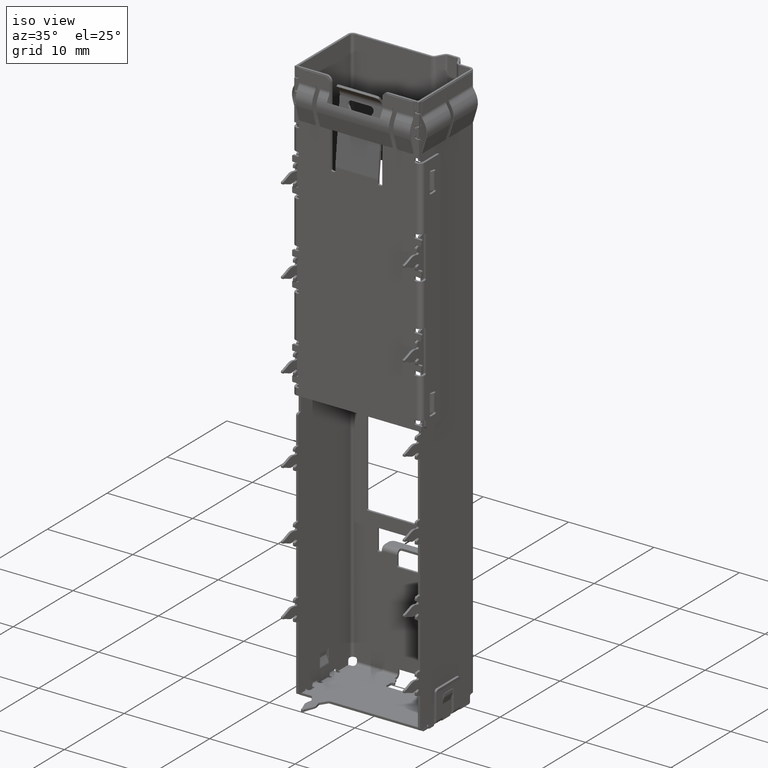
[diagram: clean part render]
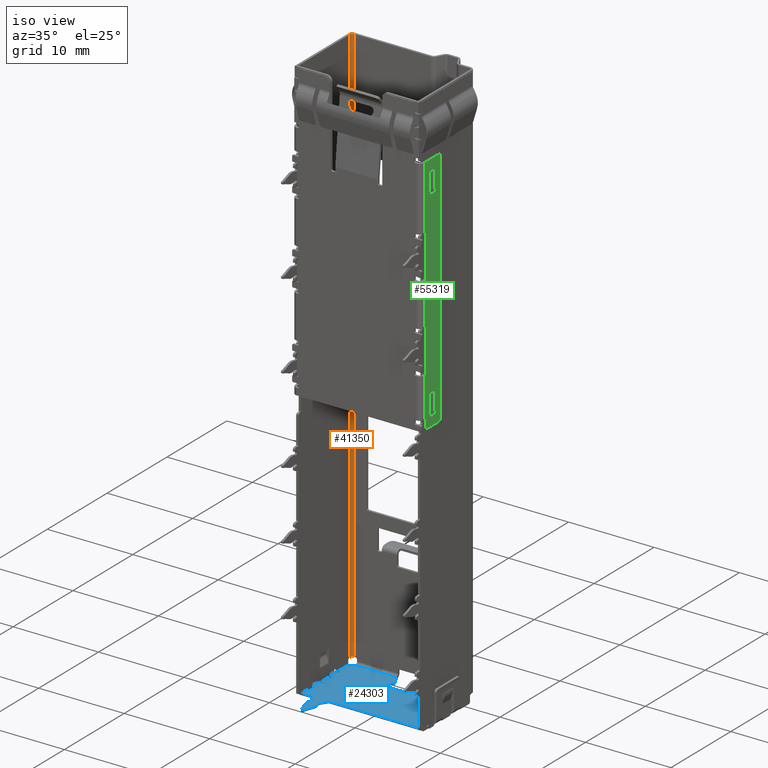
[diagram: same view with three faces highlighted in distinct colors, each labeled with its STEP entity id]
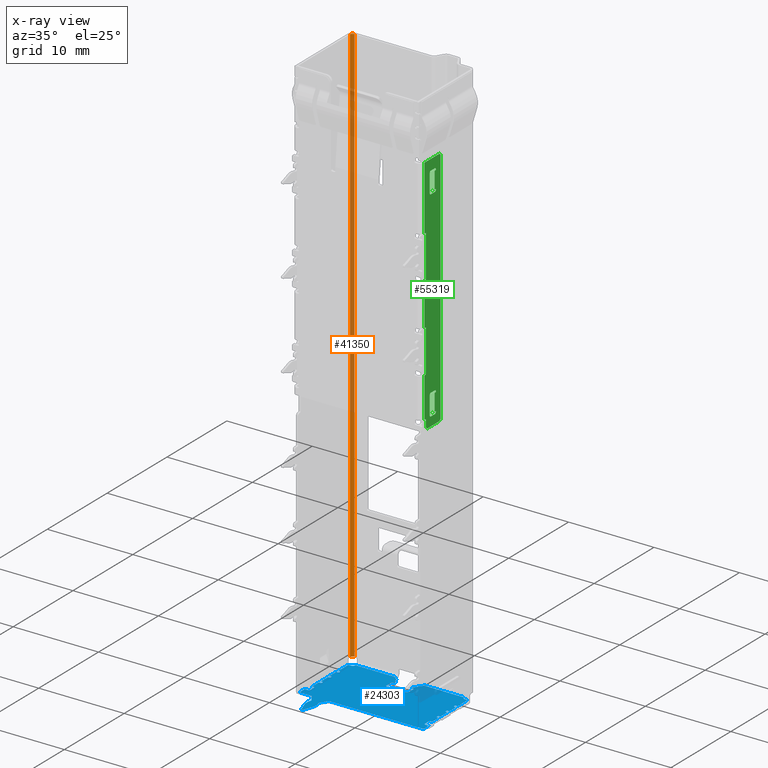
[diagram: x-ray of the same camera — body ghosted, the three highlighted faces saturated]
A machine part, iso view with three faces highlighted in distinct colors.
The next image is the same camera in x-ray (body ghosted, the three faces saturated) — at least one of them is partly hidden behind the body in this view.
Their STEP definitions:

[orange] entity #41350 — the highlighted cylindrical surface (edge-blend (fillet) strip) has radius 0.3 mm, axis along (0, 0, -1).
#1393 = VECTOR ( 'NONE', #10164, 1000.000000000000000 ) ;
#1749 = CARTESIAN_POINT ( 'NONE',  ( -7.000000000000000000, 9.199999999999995737, 0.0000000000000000000 ) ) ;
#3895 = AXIS2_PLACEMENT_3D ( 'NONE', #18951, #9203, #45176 ) ;
#6296 = LINE ( 'NONE', #37719, #52422 ) ;
#6834 = CARTESIAN_POINT ( 'NONE',  ( -6.699999999999998401, 9.199999999999997513, 0.0000000000000000000 ) ) ;
#7355 = AXIS2_PLACEMENT_3D ( 'NONE', #50034, #22061, #18750 ) ;
#7958 = EDGE_CURVE ( 'NONE', #24052, #17754, #13820, .T. ) ;
#8266 = ORIENTED_EDGE ( 'NONE', *, *, #48011, .F. ) ;
#9203 = DIRECTION ( 'NONE',  ( 0.0000000000000000000, 0.0000000000000000000, -1.000000000000000000 ) ) ;
#10164 = DIRECTION ( 'NONE',  ( 0.0000000000000000000, 0.0000000000000000000, 1.000000000000000000 ) ) ;
#11310 = DIRECTION ( 'NONE',  ( -0.0000000000000000000, -0.0000000000000000000, 1.000000000000000000 ) ) ;
#12332 = CARTESIAN_POINT ( 'NONE',  ( -7.000000000000000000, 9.199999999999995737, -65.90000000000000568 ) ) ;
#13820 = CIRCLE ( 'NONE', #7355, 0.3000000000000016542 ) ;
#15590 = VERTEX_POINT ( 'NONE', #1749 ) ;
#17754 = VERTEX_POINT ( 'NONE', #57125 ) ;
#18750 = DIRECTION ( 'NONE',  ( -1.000000000000000000, 0.0000000000000000000, 0.0000000000000000000 ) ) ;
#18951 = CARTESIAN_POINT ( 'NONE',  ( -6.699999999999998401, 9.199999999999997513, 75.31240317319257827 ) ) ;
#18984 = ORIENTED_EDGE ( 'NONE', *, *, #45262, .T. ) ;
#19329 = CARTESIAN_POINT ( 'NONE',  ( -7.000000000000000000, 9.199999999999995737, -65.90000000000000568 ) ) ;
#22061 = DIRECTION ( 'NONE',  ( 0.0000000000000000000, 0.0000000000000000000, -1.000000000000000000 ) ) ;
#23451 = EDGE_LOOP ( 'NONE', ( #28629, #46166, #18984, #8266 ) ) ;
#24052 = VERTEX_POINT ( 'NONE', #12332 ) ;
#24720 = CIRCLE ( 'NONE', #40343, 0.3000000000000016542 ) ;
#28629 = ORIENTED_EDGE ( 'NONE', *, *, #7958, .T. ) ;
#29766 = EDGE_CURVE ( 'NONE', #17754, #53833, #6296, .T. ) ;
#33620 = FACE_OUTER_BOUND ( 'NONE', #23451, .T. ) ;
#36430 = CARTESIAN_POINT ( 'NONE',  ( -6.699999999999998401, 9.500000000000008882, 0.0000000000000000000 ) ) ;
#37719 = CARTESIAN_POINT ( 'NONE',  ( -6.699999999999998401, 9.500000000000000000, -65.90000000000000568 ) ) ;
#39827 = LINE ( 'NONE', #19329, #1393 ) ;
#40343 = AXIS2_PLACEMENT_3D ( 'NONE', #6834, #11310, #51567 ) ;
#41350 = ADVANCED_FACE ( 'NONE', ( #33620 ), #56000, .F. ) ;
#42420 = DIRECTION ( 'NONE',  ( 0.0000000000000000000, 0.0000000000000000000, 1.000000000000000000 ) ) ;
#45176 = DIRECTION ( 'NONE',  ( -1.000000000000000000, 0.0000000000000000000, 0.0000000000000000000 ) ) ;
#45262 = EDGE_CURVE ( 'NONE', #53833, #15590, #24720, .T. ) ;
#46166 = ORIENTED_EDGE ( 'NONE', *, *, #29766, .T. ) ;
#48011 = EDGE_CURVE ( 'NONE', #24052, #15590, #39827, .T. ) ;
#50034 = CARTESIAN_POINT ( 'NONE',  ( -6.699999999999998401, 9.199999999999997513, -65.89999999999999147 ) ) ;
#51567 = DIRECTION ( 'NONE',  ( -1.000000000000000000, 1.734723475976797628E-14, 0.0000000000000000000 ) ) ;
#52422 = VECTOR ( 'NONE', #42420, 1000.000000000000000 ) ;
#53833 = VERTEX_POINT ( 'NONE', #36430 ) ;
#56000 = CYLINDRICAL_SURFACE ( 'NONE', #3895, 0.3000000000000016542 ) ;
#57125 = CARTESIAN_POINT ( 'NONE',  ( -6.699999999999998401, 9.500000000000000000, -65.89999999999999147 ) ) ;

[blue] entity #24303 — the highlighted planar face has unit normal (0, 0, -1).
#2 = EDGE_CURVE ( 'NONE', #48526, #44379, #14842, .T. ) ;
#51 = CARTESIAN_POINT ( 'NONE',  ( -5.367102127609582496, -0.3017062678787366115, -66.57500000000003126 ) ) ;
#163 = DIRECTION ( 'NONE',  ( 0.0000000000000000000, -1.508455196501570640E-15, -1.000000000000000000 ) ) ;
#378 = EDGE_CURVE ( 'NONE', #11100, #4750, #38556, .T. ) ;
#413 = EDGE_CURVE ( 'NONE', #22729, #15763, #2930, .T. ) ;
#488 = EDGE_CURVE ( 'NONE', #27054, #8945, #56062, .T. ) ;
#502 = DIRECTION ( 'NONE',  ( 0.0000000000000000000, -1.559302000878028960E-15, -1.000000000000000000 ) ) ;
#509 = VECTOR ( 'NONE', #28384, 1000.000000000000000 ) ;
#588 = CARTESIAN_POINT ( 'NONE',  ( 6.790000000000000924, 8.699999999999999289, -66.57500000000001705 ) ) ;
#604 = PLANE ( 'NONE',  #24961 ) ;
#651 = AXIS2_PLACEMENT_3D ( 'NONE', #57780, #26689, #13406 ) ;
#659 = EDGE_CURVE ( 'NONE', #15763, #33410, #24547, .T. ) ;
#708 = EDGE_CURVE ( 'NONE', #56125, #40259, #55325, .T. ) ;
#715 = CARTESIAN_POINT ( 'NONE',  ( 6.990000000000000213, 7.199999999999900702, -66.57500000000001705 ) ) ;
#735 = LINE ( 'NONE', #3984, #16054 ) ;
#780 = ORIENTED_EDGE ( 'NONE', *, *, #8298, .T. ) ;
#832 = VERTEX_POINT ( 'NONE', #25275 ) ;
#840 = LINE ( 'NONE', #1807, #4344 ) ;
#850 = ORIENTED_EDGE ( 'NONE', *, *, #6500, .F. ) ;
#947 = VECTOR ( 'NONE', #54891, 1000.000000000000000 ) ;
#974 = VECTOR ( 'NONE', #20910, 1000.000000000000000 ) ;
#1032 = VECTOR ( 'NONE', #57148, 1000.000000000000114 ) ;
#1048 = ORIENTED_EDGE ( 'NONE', *, *, #50941, .F. ) ;
#1053 = EDGE_CURVE ( 'NONE', #31667, #27777, #2874, .T. ) ;
#1221 = VECTOR ( 'NONE', #32017, 1000.000000000000000 ) ;
#1241 = ORIENTED_EDGE ( 'NONE', *, *, #6507, .T. ) ;
#1296 = VERTEX_POINT ( 'NONE', #16805 ) ;
#1366 = CARTESIAN_POINT ( 'NONE',  ( -7.010000000000001563, 4.000000000000006217, -66.57500000000001705 ) ) ;
#1367 = VECTOR ( 'NONE', #27081, 1000.000000000000000 ) ;
#1407 = LINE ( 'NONE', #18108, #22301 ) ;
#1417 = DIRECTION ( 'NONE',  ( -1.000000000000000000, 0.0000000000000000000, 0.0000000000000000000 ) ) ;
#1537 = CARTESIAN_POINT ( 'NONE',  ( 6.400000000000000355, 9.199999999999999289, -66.57500000000001705 ) ) ;
#1711 = CARTESIAN_POINT ( 'NONE',  ( -1.199999999999999956, 7.900000000000003908, -66.57500000000003126 ) ) ;
#1747 = VECTOR ( 'NONE', #30951, 1000.000000000000000 ) ;
#1807 = CARTESIAN_POINT ( 'NONE',  ( 6.990000000000000213, 7.199999999999900702, -66.57500000000003126 ) ) ;
#1963 = CARTESIAN_POINT ( 'NONE',  ( -5.278380684378153553, -0.8558747717239229003, -66.57500000000001705 ) ) ;
#1991 = DIRECTION ( 'NONE',  ( 0.0000000000000000000, -1.000000000000000000, 0.0000000000000000000 ) ) ;
#2041 = B_SPLINE_CURVE_WITH_KNOTS ( 'NONE', 3,
 ( #18525, #51, #35932, #45317, #31639, #44722, #36512, #49797, #18714, #31267, #53939, #31834, #13662, #23029, #14237, #22430, #26746, #27329, #54323, #35740 ),
 .UNSPECIFIED., .F., .F.,
 ( 4, 2, 2, 2, 2, 2, 2, 2, 2, 4 ),
 ( 0.0000000000000000000, 0.03125000000000025674, 0.06250000000000051348, 0.09375000000000077716, 0.1250000000000010270, 0.1875000000000006939, 0.2500000000000003886, 0.3750000000000002776, 0.5000000000000002220, 1.000000000000000000 ),
 .UNSPECIFIED. ) ;
#2216 = DIRECTION ( 'NONE',  ( -1.000000000000000000, 0.0000000000000000000, -0.0000000000000000000 ) ) ;
#2422 = EDGE_CURVE ( 'NONE', #34355, #3613, #48603, .T. ) ;
#2647 = CARTESIAN_POINT ( 'NONE',  ( -6.850000000000000533, 6.899999999999891998, -66.57500000000001705 ) ) ;
#2874 = LINE ( 'NONE', #32457, #46195 ) ;
#2930 = CIRCLE ( 'NONE', #17836, 0.1499999999999999667 ) ;
#3110 = CARTESIAN_POINT ( 'NONE',  ( -6.989999999999997549, 5.499999999999991118, -66.57500000000003126 ) ) ;
#3211 = VERTEX_POINT ( 'NONE', #52592 ) ;
#3334 = CARTESIAN_POINT ( 'NONE',  ( 6.850000000000000533, 1.999999999999890754, -66.57500000000001705 ) ) ;
#3594 = CIRCLE ( 'NONE', #14783, 0.1999999999999996503 ) ;
#3613 = VERTEX_POINT ( 'NONE', #35289 ) ;
#3711 = EDGE_CURVE ( 'NONE', #11028, #23022, #38095, .T. ) ;
#3832 = CARTESIAN_POINT ( 'NONE',  ( -4.256410914477533503, -0.4707858503104534464, -66.57500000000001705 ) ) ;
#3964 = AXIS2_PLACEMENT_3D ( 'NONE', #37785, #39715, #54690 ) ;
#3984 = CARTESIAN_POINT ( 'NONE',  ( -7.259999999999998010, 5.799999999999999822, -66.57500000000003126 ) ) ;
#4025 = CARTESIAN_POINT ( 'NONE',  ( -4.345651675963587479, 0.1641448847582577253, -66.57500000000001705 ) ) ;
#4118 = DIRECTION ( 'NONE',  ( -0.0000000000000000000, -0.0000000000000000000, 1.000000000000000000 ) ) ;
#4155 = ORIENTED_EDGE ( 'NONE', *, *, #35544, .F. ) ;
#4157 = LINE ( 'NONE', #35863, #1367 ) ;
#4200 = VECTOR ( 'NONE', #48553, 1000.000000000000000 ) ;
#4253 = CARTESIAN_POINT ( 'NONE',  ( 1.599999999999999867, 9.199999999999999289, -66.57500000000001705 ) ) ;
#4296 = CARTESIAN_POINT ( 'NONE',  ( 0.9999999999999997780, 8.199999999999999289, -66.57500000000001705 ) ) ;
#4344 = VECTOR ( 'NONE', #50404, 1000.000000000000000 ) ;
#4474 = DIRECTION ( 'NONE',  ( -0.0000000000000000000, -0.0000000000000000000, 1.000000000000000000 ) ) ;
#4485 = CARTESIAN_POINT ( 'NONE',  ( 1.300000000000000044, 7.099999999999995204, -66.57500000000001705 ) ) ;
#4490 = DIRECTION ( 'NONE',  ( 0.0000000000000000000, 0.0000000000000000000, -1.000000000000000000 ) ) ;
#4495 = CARTESIAN_POINT ( 'NONE',  ( -4.955000000000005400, -1.900000000000201528, -66.57500000000001705 ) ) ;
#4501 = VERTEX_POINT ( 'NONE', #18499 ) ;
#4608 = ORIENTED_EDGE ( 'NONE', *, *, #24540, .F. ) ;
#4629 = DIRECTION ( 'NONE',  ( 1.000000000000000000, 0.0000000000000000000, 0.0000000000000000000 ) ) ;
#4638 = VERTEX_POINT ( 'NONE', #36681 ) ;
#4750 = VERTEX_POINT ( 'NONE', #33550 ) ;
#4841 = LINE ( 'NONE', #16960, #16692 ) ;
#4879 = CARTESIAN_POINT ( 'NONE',  ( 6.990000000000000213, 8.900000000000005684, -66.57500000000003126 ) ) ;
#5011 = ORIENTED_EDGE ( 'NONE', *, *, #659, .T. ) ;
#5056 = DIRECTION ( 'NONE',  ( 0.0000000000000000000, -1.000000000000000000, 0.0000000000000000000 ) ) ;
#5066 = CARTESIAN_POINT ( 'NONE',  ( 6.699999999999999289, 2.749999999999891642, -66.57500000000001705 ) ) ;
#5192 = CARTESIAN_POINT ( 'NONE',  ( -3.690781692057780283, 1.099999999999989875, -66.57500000000001705 ) ) ;
#5232 = LINE ( 'NONE', #56499, #49206 ) ;
#5247 = EDGE_CURVE ( 'NONE', #4638, #26132, #26024, .T. ) ;
#5294 = DIRECTION ( 'NONE',  ( -0.0000000000000000000, -1.559302000878028960E-15, -1.000000000000000000 ) ) ;
#5355 = VERTEX_POINT ( 'NONE', #39302 ) ;
#5363 = CARTESIAN_POINT ( 'NONE',  ( -4.618503681286781237, -1.705834436930691922, -66.57500000000001705 ) ) ;
#5499 = DIRECTION ( 'NONE',  ( 1.000000000000000000, 6.195440985631437568E-15, 0.0000000000000000000 ) ) ;
#5536 = ORIENTED_EDGE ( 'NONE', *, *, #5247, .T. ) ;
#5665 = EDGE_CURVE ( 'NONE', #27568, #21558, #840, .T. ) ;
#5855 = LINE ( 'NONE', #24474, #39353 ) ;
#5875 = VERTEX_POINT ( 'NONE', #25367 ) ;
#6020 = EDGE_CURVE ( 'NONE', #43412, #44940, #7761, .T. ) ;
#6393 = EDGE_CURVE ( 'NONE', #27777, #13011, #23777, .T. ) ;
#6478 = DIRECTION ( 'NONE',  ( 0.0000000000000000000, 1.559302000878028960E-15, 1.000000000000000000 ) ) ;
#6500 = EDGE_CURVE ( 'NONE', #43594, #22257, #30735, .T. ) ;
#6507 = EDGE_CURVE ( 'NONE', #53743, #16798, #25868, .T. ) ;
#6519 = EDGE_CURVE ( 'NONE', #13011, #832, #13972, .T. ) ;
#6598 = CARTESIAN_POINT ( 'NONE',  ( -4.645000000000005791, -1.839420993866274667, -66.57500000000001705 ) ) ;
#6658 = CARTESIAN_POINT ( 'NONE',  ( -6.400000000000000355, 0.0000000000000000000, -66.57500000000001705 ) ) ;
#6763 = VECTOR ( 'NONE', #51152, 1000.000000000000000 ) ;
#6956 = CARTESIAN_POINT ( 'NONE',  ( -6.400000000000000355, 8.900000000000005684, -66.57500000000003126 ) ) ;
#6979 = ORIENTED_EDGE ( 'NONE', *, *, #44981, .F. ) ;
#7129 = DIRECTION ( 'NONE',  ( -1.000000000000000000, 0.0000000000000000000, 0.0000000000000000000 ) ) ;
#7147 = CARTESIAN_POINT ( 'NONE',  ( 6.859999999999997655, 5.499999999999991118, -66.57500000000001705 ) ) ;
#7494 = ORIENTED_EDGE ( 'NONE', *, *, #46382, .T. ) ;
#7550 = CARTESIAN_POINT ( 'NONE',  ( -4.257139497694297781, -0.4588966626686066252, -66.57499999999998863 ) ) ;
#7627 = CARTESIAN_POINT ( 'NONE',  ( -5.254348324036412166, 0.1641448847581605808, -66.57500000000001705 ) ) ;
#7629 = DIRECTION ( 'NONE',  ( 0.0000000000000000000, 1.559302000878028960E-15, 1.000000000000000000 ) ) ;
#7761 = LINE ( 'NONE', #23403, #22411 ) ;
#7838 = AXIS2_PLACEMENT_3D ( 'NONE', #53754, #5294, #36338 ) ;
#8002 = LINE ( 'NONE', #40920, #47091 ) ;
#8092 = CARTESIAN_POINT ( 'NONE',  ( -4.345651675963587479, 0.1641448847582577253, -66.57500000000001705 ) ) ;
#8145 = CARTESIAN_POINT ( 'NONE',  ( -4.618503681286781237, -1.705834436930691922, -66.57500000000001705 ) ) ;
#8173 = LINE ( 'NONE', #55719, #54330 ) ;
#8192 = FACE_OUTER_BOUND ( 'NONE', #56607, .T. ) ;
#8251 = DIRECTION ( 'NONE',  ( -1.000000000000000000, 8.673617379884032317E-15, 0.0000000000000000000 ) ) ;
#8298 = EDGE_CURVE ( 'NONE', #54161, #17242, #48714, .T. ) ;
#8308 = CARTESIAN_POINT ( 'NONE',  ( -4.254530275170650633, -0.5294651684052700258, -66.57500000000001705 ) ) ;
#8373 = VECTOR ( 'NONE', #34026, 1000.000000000000114 ) ;
#8390 = DIRECTION ( 'NONE',  ( -1.000000000000000000, 0.0000000000000000000, 0.0000000000000000000 ) ) ;
#8510 = ORIENTED_EDGE ( 'NONE', *, *, #12592, .T. ) ;
#8523 = VERTEX_POINT ( 'NONE', #4296 ) ;
#8576 = ORIENTED_EDGE ( 'NONE', *, *, #36570, .T. ) ;
#8582 = ORIENTED_EDGE ( 'NONE', *, *, #3711, .F. ) ;
#8610 = DIRECTION ( 'NONE',  ( 0.6000000000000010880, 0.7999999999999991562, 0.0000000000000000000 ) ) ;
#8643 = CARTESIAN_POINT ( 'NONE',  ( -5.799999999999999822, 1.100000000000003642, -66.57500000000001705 ) ) ;
#8660 = LINE ( 'NONE', #8092, #1032 ) ;
#8711 = DIRECTION ( 'NONE',  ( 0.0000000000000000000, -1.000000000000000000, 0.0000000000000000000 ) ) ;
#8770 = VERTEX_POINT ( 'NONE', #37854 ) ;
#8804 = CARTESIAN_POINT ( 'NONE',  ( -5.909218307942213144, 0.8999999999999980238, -66.57500000000001705 ) ) ;
#8945 = VERTEX_POINT ( 'NONE', #9003 ) ;
#9003 = CARTESIAN_POINT ( 'NONE',  ( 6.699999999999999289, 2.149999999999901767, -66.57500000000001705 ) ) ;
#9049 = VECTOR ( 'NONE', #10552, 1000.000000000000000 ) ;
#9065 = CARTESIAN_POINT ( 'NONE',  ( -7.010000000000002451, 2.899999999999888889, -66.57500000000001705 ) ) ;
#9101 = CARTESIAN_POINT ( 'NONE',  ( 7.259999999999997122, 1.999999999999890754, -66.57500000000001705 ) ) ;
#9184 = AXIS2_PLACEMENT_3D ( 'NONE', #45981, #23493, #45771 ) ;
#9274 = AXIS2_PLACEMENT_3D ( 'NONE', #37628, #51113, #16112 ) ;
#9332 = DIRECTION ( 'NONE',  ( 0.0000000000000000000, 0.0000000000000000000, -1.000000000000000000 ) ) ;
#9371 = EDGE_CURVE ( 'NONE', #4501, #42698, #28239, .T. ) ;
#9437 = CARTESIAN_POINT ( 'NONE',  ( 6.849999999999999645, 2.149999999999901767, -66.57500000000001705 ) ) ;
#9576 = EDGE_CURVE ( 'NONE', #22863, #40259, #26857, .T. ) ;
#9633 = DIRECTION ( 'NONE',  ( 0.0000000000000000000, 1.000000000000000000, 0.0000000000000000000 ) ) ;
#9645 = AXIS2_PLACEMENT_3D ( 'NONE', #25788, #7629, #16408 ) ;
#9763 = ORIENTED_EDGE ( 'NONE', *, *, #28034, .T. ) ;
#9851 = ORIENTED_EDGE ( 'NONE', *, *, #27768, .F. ) ;
#9991 = CARTESIAN_POINT ( 'NONE',  ( -4.527244694667195368, -1.419333916220439917, -66.57500000000001705 ) ) ;
#10001 = AXIS2_PLACEMENT_3D ( 'NONE', #23466, #54708, #50836 ) ;
#10021 = ORIENTED_EDGE ( 'NONE', *, *, #26462, .T. ) ;
#10053 = ORIENTED_EDGE ( 'NONE', *, *, #43506, .F. ) ;
#10069 = ORIENTED_EDGE ( 'NONE', *, *, #50224, .T. ) ;
#10278 = EDGE_CURVE ( 'NONE', #16795, #48526, #16996, .T. ) ;
#10459 = DIRECTION ( 'NONE',  ( 0.0000000000000000000, 1.000000000000000000, 0.0000000000000000000 ) ) ;
#10552 = DIRECTION ( 'NONE',  ( -0.0000000000000000000, -1.000000000000000000, 0.0000000000000000000 ) ) ;
#10618 = ORIENTED_EDGE ( 'NONE', *, *, #20756, .F. ) ;
#10700 = VECTOR ( 'NONE', #40316, 1000.000000000000000 ) ;
#10794 = VERTEX_POINT ( 'NONE', #1963 ) ;
#10829 = LINE ( 'NONE', #50187, #52098 ) ;
#10838 = AXIS2_PLACEMENT_3D ( 'NONE', #38592, #47399, #55613 ) ;
#11028 = VERTEX_POINT ( 'NONE', #47793 ) ;
#11100 = VERTEX_POINT ( 'NONE', #21536 ) ;
#11130 = CARTESIAN_POINT ( 'NONE',  ( -0.9999999999999997780, 8.199999999999999289, -66.57500000000001705 ) ) ;
#11441 = VERTEX_POINT ( 'NONE', #33666 ) ;
#11604 = CARTESIAN_POINT ( 'NONE',  ( -6.699999999999999289, 2.149999999999901767, -66.57500000000001705 ) ) ;
#11704 = VERTEX_POINT ( 'NONE', #26421 ) ;
#11767 = LINE ( 'NONE', #30455, #13827 ) ;
#11806 = EDGE_CURVE ( 'NONE', #43412, #3211, #30916, .T. ) ;
#11823 = DIRECTION ( 'NONE',  ( 0.0000000000000000000, 0.0000000000000000000, -1.000000000000000000 ) ) ;
#11957 = VECTOR ( 'NONE', #54062, 1000.000000000000000 ) ;
#12185 = CIRCLE ( 'NONE', #36694, 0.1000000000000000472 ) ;
#12358 = ORIENTED_EDGE ( 'NONE', *, *, #53781, .T. ) ;
#12550 = CIRCLE ( 'NONE', #32396, 0.09999999999999939493 ) ;
#12592 = EDGE_CURVE ( 'NONE', #41786, #51379, #3594, .T. ) ;
#12611 = LINE ( 'NONE', #6956, #36379 ) ;
#12615 = CARTESIAN_POINT ( 'NONE',  ( -4.231959609025730984, -0.2976982855014825846, -66.57500000000001705 ) ) ;
#12709 = CARTESIAN_POINT ( 'NONE',  ( 7.509999999999998010, 2.899999999999888889, -66.57500000000001705 ) ) ;
#12740 = CARTESIAN_POINT ( 'NONE',  ( 0.9999999999999997780, 8.199999999999999289, -66.57500000000003126 ) ) ;
#12790 = CARTESIAN_POINT ( 'NONE',  ( -4.289632642118038852, -0.7688707021881470149, -66.57500000000001705 ) ) ;
#12805 = CARTESIAN_POINT ( 'NONE',  ( -0.9999999999999997780, 8.199999999999999289, -66.57500000000003126 ) ) ;
#12879 = LINE ( 'NONE', #48518, #27531 ) ;
#12885 = VERTEX_POINT ( 'NONE', #11130 ) ;
#13011 = VERTEX_POINT ( 'NONE', #47637 ) ;
#13065 = DIRECTION ( 'NONE',  ( 0.0000000000000000000, 1.000000000000000000, -1.156482317317871764E-14 ) ) ;
#13110 = ORIENTED_EDGE ( 'NONE', *, *, #44662, .T. ) ;
#13344 = EDGE_CURVE ( 'NONE', #44903, #31667, #27220, .T. ) ;
#13384 = EDGE_CURVE ( 'NONE', #23022, #22863, #12550, .T. ) ;
#13406 = DIRECTION ( 'NONE',  ( 0.0000000000000000000, -1.000000000000000000, 0.0000000000000000000 ) ) ;
#13494 = ORIENTED_EDGE ( 'NONE', *, *, #48693, .F. ) ;
#13534 = LINE ( 'NONE', #4879, #21102 ) ;
#13662 = CARTESIAN_POINT ( 'NONE',  ( -5.341077990442995471, -0.4345186589823646917, -66.57500000000003126 ) ) ;
#13827 = VECTOR ( 'NONE', #13843, 1000.000000000000000 ) ;
#13832 = DIRECTION ( 'NONE',  ( 0.0000000000000000000, 1.000000000000000000, 0.0000000000000000000 ) ) ;
#13843 = DIRECTION ( 'NONE',  ( -1.000000000000000000, 0.0000000000000000000, 0.0000000000000000000 ) ) ;
#13972 = LINE ( 'NONE', #41416, #19559 ) ;
#14237 = CARTESIAN_POINT ( 'NONE',  ( -5.344657944932352578, -0.4957695984552638047, -66.57500000000003126 ) ) ;
#14324 = LINE ( 'NONE', #12740, #19161 ) ;
#14425 = VECTOR ( 'NONE', #44867, 1000.000000000000000 ) ;
#14433 = VERTEX_POINT ( 'NONE', #55572 ) ;
#14439 = CARTESIAN_POINT ( 'NONE',  ( 6.400000000000000355, 0.0000000000000000000, -66.57500000000001705 ) ) ;
#14552 = LINE ( 'NONE', #31242, #43196 ) ;
#14575 = DIRECTION ( 'NONE',  ( 0.0000000000000000000, 1.508455196501570640E-15, 1.000000000000000000 ) ) ;
#14751 = CARTESIAN_POINT ( 'NONE',  ( -5.273805695098919166, 0.2810863577337036068, -66.57500000000001705 ) ) ;
#14768 = VERTEX_POINT ( 'NONE', #49839 ) ;
#14783 = AXIS2_PLACEMENT_3D ( 'NONE', #8804, #21463, #21651 ) ;
#14841 = CARTESIAN_POINT ( 'NONE',  ( -4.326194304901077814, 0.2810863577337036068, -66.57500000000001705 ) ) ;
#14842 = CIRCLE ( 'NONE', #57158, 0.2000000000000000944 ) ;
#14848 = ORIENTED_EDGE ( 'NONE', *, *, #378, .F. ) ;
#15077 = EDGE_CURVE ( 'NONE', #21558, #43594, #44474, .T. ) ;
#15303 = ORIENTED_EDGE ( 'NONE', *, *, #2, .T. ) ;
#15304 = ORIENTED_EDGE ( 'NONE', *, *, #10278, .T. ) ;
#15384 = CARTESIAN_POINT ( 'NONE',  ( 6.400000000000000355, 9.199999999999999289, -66.57500000000001705 ) ) ;
#15414 = EDGE_CURVE ( 'NONE', #56295, #27568, #13534, .T. ) ;
#15543 = CARTESIAN_POINT ( 'NONE',  ( -5.164014291952391922, -1.132833395510206564, -66.57500000000001705 ) ) ;
#15565 = ORIENTED_EDGE ( 'NONE', *, *, #53617, .T. ) ;
#15674 = CARTESIAN_POINT ( 'NONE',  ( -0.9999999999999997780, 8.199999999999999289, -66.57500000000003126 ) ) ;
#15722 = DIRECTION ( 'NONE',  ( 1.000000000000000000, 8.673617379884032317E-15, 0.0000000000000000000 ) ) ;
#15763 = VERTEX_POINT ( 'NONE', #31196 ) ;
#15830 = CARTESIAN_POINT ( 'NONE',  ( -7.010000000000002451, 2.899999999999888889, -66.57500000000001705 ) ) ;
#15865 = VECTOR ( 'NONE', #41259, 1000.000000000000000 ) ;
#15904 = ORIENTED_EDGE ( 'NONE', *, *, #35131, .F. ) ;
#16054 = VECTOR ( 'NONE', #8251, 1000.000000000000000 ) ;
#16112 = DIRECTION ( 'NONE',  ( 0.0000000000000000000, -1.000000000000000000, 0.0000000000000000000 ) ) ;
#16119 = B_SPLINE_CURVE_WITH_KNOTS ( 'NONE', 3,
 ( #5363, #9991, #23099, #37155 ),
 .UNSPECIFIED., .F., .F.,
 ( 4, 4 ),
 ( 1.002123983023365694E-19, 0.0008989281167338778909 ),
 .UNSPECIFIED. ) ;
#16198 = ORIENTED_EDGE ( 'NONE', *, *, #42841, .T. ) ;
#16208 = CARTESIAN_POINT ( 'NONE',  ( -6.850000000000000533, 6.899999999999891998, -66.57500000000003126 ) ) ;
#16207 = VECTOR ( 'NONE', #5499, 1000.000000000000000 ) ;
#16229 = DIRECTION ( 'NONE',  ( -1.000000000000000000, 0.0000000000000000000, -0.0000000000000000000 ) ) ;
#16237 = CARTESIAN_POINT ( 'NONE',  ( -6.849999999999999645, 2.899999999999888889, -66.57500000000001705 ) ) ;
#16379 = ORIENTED_EDGE ( 'NONE', *, *, #16995, .F. ) ;
#16408 = DIRECTION ( 'NONE',  ( 0.0000000000000000000, -1.000000000000000000, 0.0000000000000000000 ) ) ;
#16411 = EDGE_CURVE ( 'NONE', #52139, #41786, #40346, .T. ) ;
#16486 = ORIENTED_EDGE ( 'NONE', *, *, #23080, .T. ) ;
#16643 = VECTOR ( 'NONE', #21555, 1000.000000000000000 ) ;
#16692 = VECTOR ( 'NONE', #13065, 1000.000000000000000 ) ;
#16795 = VERTEX_POINT ( 'NONE', #42769 ) ;
#16798 = VERTEX_POINT ( 'NONE', #56453 ) ;
#16805 = CARTESIAN_POINT ( 'NONE',  ( -6.859999999999997655, 4.299999999999998046, -66.57500000000001705 ) ) ;
#16867 = VERTEX_POINT ( 'NONE', #29096 ) ;
#16960 = CARTESIAN_POINT ( 'NONE',  ( -6.989999999999997549, 5.499999999999991118, -66.57500000000003126 ) ) ;
#16967 = CARTESIAN_POINT ( 'NONE',  ( -4.745000000000005436, -2.000000000000201172, -66.57500000000001705 ) ) ;
#16995 = EDGE_CURVE ( 'NONE', #14433, #8523, #26323, .T. ) ;
#16996 = LINE ( 'NONE', #14841, #947 ) ;
#17032 = ORIENTED_EDGE ( 'NONE', *, *, #57693, .T. ) ;
#17077 = CARTESIAN_POINT ( 'NONE',  ( -4.258807906486509864, -0.4372863242414267715, -66.57500000000001705 ) ) ;
#17242 = VERTEX_POINT ( 'NONE', #42126 ) ;
#17282 = CARTESIAN_POINT ( 'NONE',  ( -4.237044439685051067, -0.3184661321600067985, -66.57500000000003126 ) ) ;
#17632 = ORIENTED_EDGE ( 'NONE', *, *, #15414, .F. ) ;
#17769 = ORIENTED_EDGE ( 'NONE', *, *, #56479, .F. ) ;
#17836 = AXIS2_PLACEMENT_3D ( 'NONE', #40736, #163, #22555 ) ;
#17930 = CARTESIAN_POINT ( 'NONE',  ( -3.690781692057787389, 0.8999999999999980238, -66.57500000000001705 ) ) ;
#17941 = ORIENTED_EDGE ( 'NONE', *, *, #6393, .T. ) ;
#18108 = CARTESIAN_POINT ( 'NONE',  ( -7.259999999999997122, 1.999999999999890754, -66.57500000000001705 ) ) ;
#18114 = CARTESIAN_POINT ( 'NONE',  ( -6.699999999999999289, 2.749999999999891642, -66.57500000000001705 ) ) ;
#18219 = AXIS2_PLACEMENT_3D ( 'NONE', #50235, #6478, #42221 ) ;
#18272 = LINE ( 'NONE', #31489, #42066 ) ;
#18384 = CARTESIAN_POINT ( 'NONE',  ( -5.368040390974289977, -0.2976982855015084528, -66.57500000000001705 ) ) ;
#18449 = CARTESIAN_POINT ( 'NONE',  ( 6.699999999999999289, 2.749999999999891642, -66.57500000000001705 ) ) ;
#18499 = CARTESIAN_POINT ( 'NONE',  ( 7.010000000000001563, 2.899999999999902656, -66.57500000000003126 ) ) ;
#18525 = CARTESIAN_POINT ( 'NONE',  ( -5.368040390974289977, -0.2976982855015084528, -66.57500000000001705 ) ) ;
#18695 = CARTESIAN_POINT ( 'NONE',  ( 6.400000000000000355, 0.0000000000000000000, -66.57500000000001705 ) ) ;
#18709 = EDGE_CURVE ( 'NONE', #33029, #1296, #56866, .T. ) ;
#18715 = ORIENTED_EDGE ( 'NONE', *, *, #57759, .T. ) ;
#18714 = CARTESIAN_POINT ( 'NONE',  ( -5.350349339404308679, -0.3684359251498379728, -66.57500000000001705 ) ) ;
#18813 = ORIENTED_EDGE ( 'NONE', *, *, #40893, .F. ) ;
#18873 = DIRECTION ( 'NONE',  ( 0.0000000000000000000, -1.000000000000000000, 0.0000000000000000000 ) ) ;
#18931 = DIRECTION ( 'NONE',  ( 0.8320502943378432770, 0.5547001962252297025, 0.0000000000000000000 ) ) ;
#19028 = CARTESIAN_POINT ( 'NONE',  ( -6.849999999999999645, 2.749999999999891642, -66.57500000000001705 ) ) ;
#19119 = VECTOR ( 'NONE', #54036, 1000.000000000000000 ) ;
#19161 = VECTOR ( 'NONE', #8610, 1000.000000000000000 ) ;
#19384 = VECTOR ( 'NONE', #20118, 1000.000000000000000 ) ;
#19419 = ORIENTED_EDGE ( 'NONE', *, *, #50867, .F. ) ;
#19559 = VECTOR ( 'NONE', #1417, 1000.000000000000000 ) ;
#19687 = ORIENTED_EDGE ( 'NONE', *, *, #6020, .F. ) ;
#19805 = DIRECTION ( 'NONE',  ( 0.0000000000000000000, -1.559302000878028960E-15, -1.000000000000000000 ) ) ;
#19900 = DIRECTION ( 'NONE',  ( -1.000000000000000000, 0.0000000000000000000, 0.0000000000000000000 ) ) ;
#20103 = ORIENTED_EDGE ( 'NONE', *, *, #25858, .T. ) ;
#20118 = DIRECTION ( 'NONE',  ( 1.000000000000000000, -3.624332976594401528E-14, 0.0000000000000000000 ) ) ;
#20365 = VECTOR ( 'NONE', #8711, 1000.000000000000000 ) ;
#20408 = EDGE_CURVE ( 'NONE', #8945, #23882, #41272, .T. ) ;
#20446 = ORIENTED_EDGE ( 'NONE', *, *, #6519, .T. ) ;
#20756 = EDGE_CURVE ( 'NONE', #43001, #12885, #37013, .T. ) ;
#20830 = VERTEX_POINT ( 'NONE', #46765 ) ;
#20910 = DIRECTION ( 'NONE',  ( -1.000000000000000000, 0.0000000000000000000, 0.0000000000000000000 ) ) ;
#21102 = VECTOR ( 'NONE', #18873, 1000.000000000000000 ) ;
#21128 = CIRCLE ( 'NONE', #9274, 0.09999999999999939493 ) ;
#21141 = CARTESIAN_POINT ( 'NONE',  ( 7.010000000000002451, 0.0000000000000000000, -66.57500000000001705 ) ) ;
#21190 = CIRCLE ( 'NONE', #53929, 0.1999999999999996503 ) ;
#21463 = DIRECTION ( 'NONE',  ( 0.0000000000000000000, 0.0000000000000000000, -1.000000000000000000 ) ) ;
#21536 = CARTESIAN_POINT ( 'NONE',  ( 1.300000000000000266, 8.599999999999996092, -66.57500000000001705 ) ) ;
#21555 = DIRECTION ( 'NONE',  ( 0.0000000000000000000, 1.000000000000000000, 0.0000000000000000000 ) ) ;
#21558 = VERTEX_POINT ( 'NONE', #28149 ) ;
#21651 = DIRECTION ( 'NONE',  ( -1.000000000000000000, 0.0000000000000000000, 0.0000000000000000000 ) ) ;
#21858 = CARTESIAN_POINT ( 'NONE',  ( -4.321619315621837210, -0.8558747717238979202, -66.57500000000001705 ) ) ;
#22009 = LINE ( 'NONE', #28917, #31136 ) ;
#22115 = CARTESIAN_POINT ( 'NONE',  ( 6.599999999999999645, 8.900000000000005684, -66.57500000000001705 ) ) ;
#22175 = CARTESIAN_POINT ( 'NONE',  ( -4.295000000000005258, -1.839420993866274667, -66.57500000000001705 ) ) ;
#22257 = VERTEX_POINT ( 'NONE', #52933 ) ;
#22301 = VECTOR ( 'NONE', #27663, 1000.000000000000000 ) ;
#22411 = VECTOR ( 'NONE', #55057, 1000.000000000000000 ) ;
#22430 = CARTESIAN_POINT ( 'NONE',  ( -5.344843591177035336, -0.5421393243293592956, -66.57500000000000284 ) ) ;
#22555 = DIRECTION ( 'NONE',  ( 0.0000000000000000000, -1.000000000000000000, 0.0000000000000000000 ) ) ;
#22568 = CARTESIAN_POINT ( 'NONE',  ( 6.989999999999997549, 5.499999999999991118, -66.57500000000003126 ) ) ;
#22670 = DIRECTION ( 'NONE',  ( 0.5405757182253547732, -0.8412953660071721407, 0.0000000000000000000 ) ) ;
#22729 = VERTEX_POINT ( 'NONE', #7147 ) ;
#22863 = VERTEX_POINT ( 'NONE', #44418 ) ;
#23022 = VERTEX_POINT ( 'NONE', #27567 ) ;
#23029 = CARTESIAN_POINT ( 'NONE',  ( -5.343728147639135173, -0.4717625399856458790, -66.57500000000001705 ) ) ;
#23080 = EDGE_CURVE ( 'NONE', #25094, #35286, #54448, .T. ) ;
#23099 = CARTESIAN_POINT ( 'NONE',  ( -4.435985708047609499, -1.132833395510187247, -66.57500000000001705 ) ) ;
#23128 = ORIENTED_EDGE ( 'NONE', *, *, #42555, .T. ) ;
#23295 = ORIENTED_EDGE ( 'NONE', *, *, #27854, .T. ) ;
#23403 = CARTESIAN_POINT ( 'NONE',  ( -1.599999999999999867, 0.0000000000000000000, -66.57500000000001705 ) ) ;
#23466 = CARTESIAN_POINT ( 'NONE',  ( -6.850000000000000533, 7.049999999999889688, -66.57500000000003126 ) ) ;
#23493 = DIRECTION ( 'NONE',  ( 0.0000000000000000000, -1.508455196501570640E-15, -1.000000000000000000 ) ) ;
#23511 = ORIENTED_EDGE ( 'NONE', *, *, #13344, .T. ) ;
#23727 = VERTEX_POINT ( 'NONE', #47078 ) ;
#23777 = CIRCLE ( 'NONE', #3964, 0.1499999999999999667 ) ;
#23862 = DIRECTION ( 'NONE',  ( 0.0000000000000000000, -1.000000000000000000, 0.0000000000000000000 ) ) ;
#23882 = VERTEX_POINT ( 'NONE', #3334 ) ;
#24100 = EDGE_CURVE ( 'NONE', #43684, #23727, #39664, .T. ) ;
#24209 = VERTEX_POINT ( 'NONE', #4495 ) ;
#24303 = ADVANCED_FACE ( 'NONE', ( #8192 ), #604, .F. ) ;
#24369 = ORIENTED_EDGE ( 'NONE', *, *, #35240, .T. ) ;
#24474 = CARTESIAN_POINT ( 'NONE',  ( 1.599999999999999867, 0.0000000000000000000, -66.57500000000001705 ) ) ;
#24540 = EDGE_CURVE ( 'NONE', #46637, #42009, #39608, .T. ) ;
#24547 = LINE ( 'NONE', #42506, #48320 ) ;
#24597 = CARTESIAN_POINT ( 'NONE',  ( 6.859999999999997655, 4.299999999999998046, -66.57500000000001705 ) ) ;
#24698 = CARTESIAN_POINT ( 'NONE',  ( -4.955000000000004512, -1.839420993866274667, -66.57500000000001705 ) ) ;
#24790 = VECTOR ( 'NONE', #49551, 1000.000000000000000 ) ;
#24820 = CARTESIAN_POINT ( 'NONE',  ( -1.000000000000000000, 1.099999999999892619, -66.57500000000001705 ) ) ;
#24961 = AXIS2_PLACEMENT_3D ( 'NONE', #18695, #9332, #40611 ) ;
#25094 = VERTEX_POINT ( 'NONE', #25442 ) ;
#25275 = CARTESIAN_POINT ( 'NONE',  ( -7.259999999999997122, 1.999999999999890754, -66.57500000000001705 ) ) ;
#25367 = CARTESIAN_POINT ( 'NONE',  ( 6.790000000000000924, 8.900000000000005684, -66.57500000000001705 ) ) ;
#25442 = CARTESIAN_POINT ( 'NONE',  ( 6.859999999999997655, 4.000000000000003553, -66.57500000000001705 ) ) ;
#25788 = CARTESIAN_POINT ( 'NONE',  ( 6.850000000000000533, 7.049999999999889688, -66.57500000000003126 ) ) ;
#25841 = EDGE_CURVE ( 'NONE', #42009, #51888, #12185, .T. ) ;
#25858 = EDGE_CURVE ( 'NONE', #56295, #5875, #21190, .T. ) ;
#25868 = CIRCLE ( 'NONE', #37658, 0.1999999999999996503 ) ;
#25874 = DIRECTION ( 'NONE',  ( 1.000000000000000000, 0.0000000000000000000, 0.0000000000000000000 ) ) ;
#25892 = CARTESIAN_POINT ( 'NONE',  ( -4.233728554812478784, -0.3052546964265288043, -66.57500000000000284 ) ) ;
#26024 = CIRCLE ( 'NONE', #43528, 0.1999999999999996503 ) ;
#26075 = CARTESIAN_POINT ( 'NONE',  ( -4.253924083892917984, -0.3891400334911631620, -66.57500000000003126 ) ) ;
#26132 = VERTEX_POINT ( 'NONE', #43682 ) ;
#26166 = CARTESIAN_POINT ( 'NONE',  ( -6.790000000000000924, 8.699999999999999289, -66.57500000000001705 ) ) ;
#26179 = ORIENTED_EDGE ( 'NONE', *, *, #20408, .F. ) ;
#26323 = LINE ( 'NONE', #44297, #14425 ) ;
#26421 = CARTESIAN_POINT ( 'NONE',  ( -6.859999999999997655, 5.499999999999991118, -66.57500000000001705 ) ) ;
#26462 = EDGE_CURVE ( 'NONE', #39262, #31002, #49142, .T. ) ;
#26497 = CARTESIAN_POINT ( 'NONE',  ( 1.300000000000000044, 7.900000000000003908, -66.57500000000003126 ) ) ;
#26689 = DIRECTION ( 'NONE',  ( 0.0000000000000000000, -1.559302000878028960E-15, -1.000000000000000000 ) ) ;
#26746 = CARTESIAN_POINT ( 'NONE',  ( -5.344222078166061429, -0.5628312314639065672, -66.57500000000001705 ) ) ;
#26771 = VERTEX_POINT ( 'NONE', #33038 ) ;
#26857 = LINE ( 'NONE', #44433, #1747 ) ;
#27007 = DIRECTION ( 'NONE',  ( 1.000000000000000000, -1.485208455459597523E-16, 0.0000000000000000000 ) ) ;
#27054 = VERTEX_POINT ( 'NONE', #5066 ) ;
#27081 = DIRECTION ( 'NONE',  ( -0.0000000000000000000, -1.000000000000000000, -0.0000000000000000000 ) ) ;
#27145 = VERTEX_POINT ( 'NONE', #1366 ) ;
#27174 = CARTESIAN_POINT ( 'NONE',  ( 1.600000000000000533, 8.999999999999994671, -66.57500000000003126 ) ) ;
#27220 = CIRCLE ( 'NONE', #51181, 0.1499999999999999667 ) ;
#27329 = CARTESIAN_POINT ( 'NONE',  ( -5.335703261881251436, -0.6788873921731052308, -66.57500000000000284 ) ) ;
#27380 = CARTESIAN_POINT ( 'NONE',  ( -7.259999999999997122, 1.100000000000003642, -66.57500000000001705 ) ) ;
#27521 = CARTESIAN_POINT ( 'NONE',  ( -6.990000000000000213, 7.199999999999900702, -66.57500000000003126 ) ) ;
#27531 = VECTOR ( 'NONE', #25874, 1000.000000000000000 ) ;
#27567 = CARTESIAN_POINT ( 'NONE',  ( -1.199999999999999956, 7.999999999999992895, -66.57500000000001705 ) ) ;
#27568 = VERTEX_POINT ( 'NONE', #715 ) ;
#27595 = ORIENTED_EDGE ( 'NONE', *, *, #413, .T. ) ;
#27628 = ORIENTED_EDGE ( 'NONE', *, *, #25841, .F. ) ;
#27663 = DIRECTION ( 'NONE',  ( 0.0000000000000000000, -1.000000000000000000, 0.0000000000000000000 ) ) ;
#27720 = DIRECTION ( 'NONE',  ( 1.000000000000000000, 0.0000000000000000000, 0.0000000000000000000 ) ) ;
#27731 = ORIENTED_EDGE ( 'NONE', *, *, #15077, .F. ) ;
#27768 = EDGE_CURVE ( 'NONE', #53743, #5875, #39311, .T. ) ;
#27777 = VERTEX_POINT ( 'NONE', #11604 ) ;
#27854 = EDGE_CURVE ( 'NONE', #50920, #44055, #51830, .T. ) ;
#27934 = ORIENTED_EDGE ( 'NONE', *, *, #29683, .T. ) ;
#27961 = LINE ( 'NONE', #12805, #4200 ) ;
#28034 = EDGE_CURVE ( 'NONE', #35286, #39262, #18272, .T. ) ;
#28094 = CARTESIAN_POINT ( 'NONE',  ( 6.850000000000000533, 6.899999999999891998, -66.57500000000003126 ) ) ;
#28149 = CARTESIAN_POINT ( 'NONE',  ( 6.850000000000000533, 7.199999999999900702, -66.57500000000001705 ) ) ;
#28170 = CARTESIAN_POINT ( 'NONE',  ( -1.300000000000000044, 7.099999999999995204, -66.57500000000001705 ) ) ;
#28201 = DIRECTION ( 'NONE',  ( 0.0000000000000000000, 1.000000000000000000, 0.0000000000000000000 ) ) ;
#28221 = VECTOR ( 'NONE', #52331, 1000.000000000000000 ) ;
#28239 = LINE ( 'NONE', #21141, #50645 ) ;
#28316 = DIRECTION ( 'NONE',  ( 0.0000000000000000000, -1.000000000000000000, 0.0000000000000000000 ) ) ;
#28384 = DIRECTION ( 'NONE',  ( 0.0000000000000000000, 1.000000000000000000, 0.0000000000000000000 ) ) ;
#28675 = CARTESIAN_POINT ( 'NONE',  ( -6.990000000000000213, 8.900000000000005684, -66.57500000000003126 ) ) ;
#28917 = CARTESIAN_POINT ( 'NONE',  ( -4.955000000000005400, -1.900000000000201528, -66.57500000000001705 ) ) ;
#29096 = CARTESIAN_POINT ( 'NONE',  ( -1.299999999999999822, 8.800000000000002487, -66.57500000000001705 ) ) ;
#29145 = LINE ( 'NONE', #36614, #509 ) ;
#29160 = ORIENTED_EDGE ( 'NONE', *, *, #56668, .F. ) ;
#29161 = ORIENTED_EDGE ( 'NONE', *, *, #45110, .T. ) ;
#29209 = EDGE_CURVE ( 'NONE', #33410, #22257, #29145, .T. ) ;
#29450 = CARTESIAN_POINT ( 'NONE',  ( -4.645000000000004903, -1.839420993866274667, -66.57500000000001705 ) ) ;
#29674 = DIRECTION ( 'NONE',  ( -1.000000000000000000, 0.0000000000000000000, 0.0000000000000000000 ) ) ;
#29683 = EDGE_CURVE ( 'NONE', #3211, #4638, #30023, .T. ) ;
#29714 = CARTESIAN_POINT ( 'NONE',  ( -6.990000000000000213, 7.199999999999900702, -66.57500000000001705 ) ) ;
#29902 = EDGE_CURVE ( 'NONE', #56225, #8770, #4841, .T. ) ;
#29979 = CARTESIAN_POINT ( 'NONE',  ( -4.249425350973864646, -0.3671724578236197356, -66.57500000000001705 ) ) ;
#30023 = LINE ( 'NONE', #6658, #9049 ) ;
#30096 = LINE ( 'NONE', #9101, #40600 ) ;
#30101 = VERTEX_POINT ( 'NONE', #1537 ) ;
#30138 = CARTESIAN_POINT ( 'NONE',  ( -1.149999999999999911, 7.099999999999995204, -66.57500000000001705 ) ) ;
#30300 = CARTESIAN_POINT ( 'NONE',  ( 6.849999999999999645, 2.899999999999888889, -66.57500000000001705 ) ) ;
#30395 = VERTEX_POINT ( 'NONE', #8145 ) ;
#30455 = CARTESIAN_POINT ( 'NONE',  ( -6.989999999999997549, 4.299999999999998046, -66.57500000000001705 ) ) ;
#30467 = EDGE_CURVE ( 'NONE', #50920, #11441, #53721, .T. ) ;
#30572 = CARTESIAN_POINT ( 'NONE',  ( -4.255755383798325298, -0.5636489504641969406, -66.57500000000000284 ) ) ;
#30590 = CIRCLE ( 'NONE', #10001, 0.1500000000000008271 ) ;
#30735 = LINE ( 'NONE', #28094, #45427 ) ;
#30916 = LINE ( 'NONE', #15384, #55364 ) ;
#30951 = DIRECTION ( 'NONE',  ( 0.0000000000000000000, -1.000000000000000000, 0.0000000000000000000 ) ) ;
#31002 = VERTEX_POINT ( 'NONE', #49054 ) ;
#31136 = VECTOR ( 'NONE', #37939, 1000.000000000000000 ) ;
#31196 = CARTESIAN_POINT ( 'NONE',  ( 6.859999999999997655, 5.799999999999999822, -66.57500000000001705 ) ) ;
#31206 = VERTEX_POINT ( 'NONE', #54914 ) ;
#31242 = CARTESIAN_POINT ( 'NONE',  ( -1.299999999999999822, 8.800000000000002487, -66.57500000000003126 ) ) ;
#31267 = CARTESIAN_POINT ( 'NONE',  ( -5.345815873583859457, -0.3888867292376526064, -66.57500000000000284 ) ) ;
#31301 = CARTESIAN_POINT ( 'NONE',  ( -5.273805695098919166, 0.2810863577337036068, -66.57500000000001705 ) ) ;
#31313 = CARTESIAN_POINT ( 'NONE',  ( 6.989999999999997549, 5.499999999999991118, -66.57500000000003126 ) ) ;
#31489 = CARTESIAN_POINT ( 'NONE',  ( 6.989999999999997549, 4.299999999999998046, -66.57500000000001705 ) ) ;
#31602 = VERTEX_POINT ( 'NONE', #7627 ) ;
#31633 = CARTESIAN_POINT ( 'NONE',  ( 6.850000000000000533, 6.899999999999891998, -66.57500000000001705 ) ) ;
#31639 = CARTESIAN_POINT ( 'NONE',  ( -5.360085684286463703, -0.3296181590741129597, -66.57500000000001705 ) ) ;
#31640 = CARTESIAN_POINT ( 'NONE',  ( -5.909218307942213144, 1.100000000000003642, -66.57500000000001705 ) ) ;
#31667 = VERTEX_POINT ( 'NONE', #18114 ) ;
#31834 = CARTESIAN_POINT ( 'NONE',  ( -5.341439381662131503, -0.4255705081576252602, -66.57500000000003126 ) ) ;
#31986 = DIRECTION ( 'NONE',  ( 0.0000000000000000000, -1.559302000878028960E-15, -1.000000000000000000 ) ) ;
#31988 = ORIENTED_EDGE ( 'NONE', *, *, #49698, .T. ) ;
#32017 = DIRECTION ( 'NONE',  ( -0.0000000000000000000, -1.000000000000000000, 0.0000000000000000000 ) ) ;
#32147 = CIRCLE ( 'NONE', #54765, 0.1500000000000018541 ) ;
#32250 = CARTESIAN_POINT ( 'NONE',  ( -1.149999999999999911, 6.949999999999984190, -66.57500000000001705 ) ) ;
#32371 = CARTESIAN_POINT ( 'NONE',  ( 7.010000000000001563, 5.799999999999999822, -66.57500000000003126 ) ) ;
#32396 = AXIS2_PLACEMENT_3D ( 'NONE', #1711, #14575, #10459 ) ;
#32457 = CARTESIAN_POINT ( 'NONE',  ( -6.699999999999999289, 2.749999999999891642, -66.57500000000001705 ) ) ;
#32557 = ORIENTED_EDGE ( 'NONE', *, *, #9371, .T. ) ;
#32658 = B_SPLINE_CURVE_WITH_KNOTS ( 'NONE', 3,
 ( #56758, #34475, #12790, #56956, #38788, #30572, #8308, #52476, #3832, #7550, #39359, #17077, #35041, #52869, #26075, #34285, #47780, #29979, #44034, #17282, #25892, #12615 ),
 .UNSPECIFIED., .F., .F.,
 ( 4, 2, 2, 1, 1, 2, 2, 1, 1, 2, 2, 2, 4 ),
 ( 0.0000000000000000000, 0.2500000000000002220, 0.5000000000000004441, 0.6250000000000005551, 0.6875000000000002220, 0.7187500000000003331, 0.7500000000000003331, 0.8124999999999998890, 0.8437500000000000000, 0.8593750000000000000, 0.8750000000000000000, 0.9375000000000000000, 1.000000000000000000 ),
 .UNSPECIFIED. ) ;
#32703 = VERTEX_POINT ( 'NONE', #18384 ) ;
#32858 = CARTESIAN_POINT ( 'NONE',  ( 7.259999999999998010, 3.999999999999989786, -66.57500000000001705 ) ) ;
#32886 = ORIENTED_EDGE ( 'NONE', *, *, #50543, .F. ) ;
#32989 = CARTESIAN_POINT ( 'NONE',  ( -4.645000000000004903, -1.900000000000201528, -66.57500000000001705 ) ) ;
#33029 = VERTEX_POINT ( 'NONE', #43367 ) ;
#33038 = CARTESIAN_POINT ( 'NONE',  ( -4.855000000000004867, -2.000000000000201172, -66.57500000000001705 ) ) ;
#33095 = CARTESIAN_POINT ( 'NONE',  ( 1.199999999999999956, 7.999999999999992895, -66.57500000000001705 ) ) ;
#33197 = EDGE_CURVE ( 'NONE', #4501, #39121, #56298, .T. ) ;
#33410 = VERTEX_POINT ( 'NONE', #32371 ) ;
#33458 = ORIENTED_EDGE ( 'NONE', *, *, #53860, .F. ) ;
#33550 = CARTESIAN_POINT ( 'NONE',  ( 1.300000000000000266, 8.800000000000002487, -66.57500000000001705 ) ) ;
#33666 = CARTESIAN_POINT ( 'NONE',  ( 1.300000000000000044, 7.900000000000003908, -66.57500000000003126 ) ) ;
#33849 = DIRECTION ( 'NONE',  ( 0.0000000000000000000, 0.0000000000000000000, -1.000000000000000000 ) ) ;
#34026 = DIRECTION ( 'NONE',  ( 0.6000000000000006439, -0.7999999999999994893, 0.0000000000000000000 ) ) ;
#34042 = VECTOR ( 'NONE', #27007, 1000.000000000000000 ) ;
#34285 = CARTESIAN_POINT ( 'NONE',  ( -4.252632735067948921, -0.3823042486660032657, -66.57500000000001705 ) ) ;
#34303 = EDGE_CURVE ( 'NONE', #11441, #47530, #21128, .T. ) ;
#34355 = VERTEX_POINT ( 'NONE', #24698 ) ;
#34475 = CARTESIAN_POINT ( 'NONE',  ( -4.303858068315468799, -0.8128627424844072635, -66.57500000000001705 ) ) ;
#34487 = VERTEX_POINT ( 'NONE', #4025 ) ;
#34744 = VECTOR ( 'NONE', #29674, 1000.000000000000000 ) ;
#35041 = CARTESIAN_POINT ( 'NONE',  ( -4.258525267488191268, -0.4210910496677154335, -66.57500000000001705 ) ) ;
#35131 = EDGE_CURVE ( 'NONE', #26771, #24209, #49716, .T. ) ;
#35240 = EDGE_CURVE ( 'NONE', #23727, #44905, #44110, .T. ) ;
#35286 = VERTEX_POINT ( 'NONE', #24597 ) ;
#35289 = CARTESIAN_POINT ( 'NONE',  ( -4.981496318713229066, -1.705834436930691700, -66.57500000000001705 ) ) ;
#35403 = ORIENTED_EDGE ( 'NONE', *, *, #53607, .T. ) ;
#35480 = AXIS2_PLACEMENT_3D ( 'NONE', #30138, #11823, #7129 ) ;
#35488 = ORIENTED_EDGE ( 'NONE', *, *, #56138, .F. ) ;
#35535 = EDGE_CURVE ( 'NONE', #31002, #22729, #44786, .T. ) ;
#35544 = EDGE_CURVE ( 'NONE', #5355, #37434, #30096, .T. ) ;
#35549 = VERTEX_POINT ( 'NONE', #53692 ) ;
#35740 = CARTESIAN_POINT ( 'NONE',  ( -5.278380684378153553, -0.8558747717239229003, -66.57500000000001705 ) ) ;
#35794 = DIRECTION ( 'NONE',  ( 0.0000000000000000000, 1.000000000000000000, 0.0000000000000000000 ) ) ;
#35856 = CARTESIAN_POINT ( 'NONE',  ( 1.300000000000000266, 8.800000000000002487, -66.57500000000003126 ) ) ;
#35863 = CARTESIAN_POINT ( 'NONE',  ( -7.010000000000002451, 5.799999999999999822, -66.57500000000001705 ) ) ;
#35923 = EDGE_CURVE ( 'NONE', #26132, #43684, #12611, .T. ) ;
#35932 = CARTESIAN_POINT ( 'NONE',  ( -5.365804024709079023, -0.3070131180007190652, -66.57500000000001705 ) ) ;
#36093 = ORIENTED_EDGE ( 'NONE', *, *, #50877, .F. ) ;
#36338 = DIRECTION ( 'NONE',  ( 0.0000000000000000000, -1.000000000000000000, 0.0000000000000000000 ) ) ;
#36379 = VECTOR ( 'NONE', #38226, 1000.000000000000000 ) ;
#36411 = DIRECTION ( 'NONE',  ( 0.0000000000000000000, 1.559302000878028960E-15, 1.000000000000000000 ) ) ;
#36512 = CARTESIAN_POINT ( 'NONE',  ( -5.354332101776151376, -0.3520642654056514997, -66.57500000000003126 ) ) ;
#36570 = EDGE_CURVE ( 'NONE', #44379, #37434, #49457, .T. ) ;
#36614 = CARTESIAN_POINT ( 'NONE',  ( 7.010000000000002451, 0.0000000000000000000, -66.57500000000001705 ) ) ;
#36681 = CARTESIAN_POINT ( 'NONE',  ( -6.400000000000000355, 9.099999999999997868, -66.57500000000001705 ) ) ;
#36694 = AXIS2_PLACEMENT_3D ( 'NONE', #39834, #31986, #13832 ) ;
#36845 = ORIENTED_EDGE ( 'NONE', *, *, #16411, .T. ) ;
#36907 = ORIENTED_EDGE ( 'NONE', *, *, #42299, .T. ) ;
#37013 = LINE ( 'NONE', #15674, #8373 ) ;
#37109 = VECTOR ( 'NONE', #1991, 1000.000000000000000 ) ;
#37142 = VECTOR ( 'NONE', #2216, 1000.000000000000000 ) ;
#37155 = CARTESIAN_POINT ( 'NONE',  ( -4.321619315621837210, -0.8558747717238979202, -66.57500000000001705 ) ) ;
#37234 = DIRECTION ( 'NONE',  ( -1.000000000000000000, 0.0000000000000000000, -0.0000000000000000000 ) ) ;
#37282 = VERTEX_POINT ( 'NONE', #4253 ) ;
#37434 = VERTEX_POINT ( 'NONE', #45438 ) ;
#37501 = AXIS2_PLACEMENT_3D ( 'NONE', #46539, #41635, #28316 ) ;
#37617 = LINE ( 'NONE', #16967, #55080 ) ;
#37628 = CARTESIAN_POINT ( 'NONE',  ( 1.199999999999999956, 7.900000000000003908, -66.57500000000003126 ) ) ;
#37658 = AXIS2_PLACEMENT_3D ( 'NONE', #56072, #46313, #19900 ) ;
#37709 = VECTOR ( 'NONE', #22670, 1000.000000000000114 ) ;
#37785 = CARTESIAN_POINT ( 'NONE',  ( -6.849999999999999645, 2.149999999999901767, -66.57500000000001705 ) ) ;
#37854 = CARTESIAN_POINT ( 'NONE',  ( -6.989999999999997549, 5.499999999999991118, -66.57500000000001705 ) ) ;
#37939 = DIRECTION ( 'NONE',  ( 1.431786015225900208E-14, 1.000000000000000000, 0.0000000000000000000 ) ) ;
#38067 = EDGE_CURVE ( 'NONE', #24209, #34355, #22009, .T. ) ;
#38095 = LINE ( 'NONE', #54449, #24790 ) ;
#38192 = ORIENTED_EDGE ( 'NONE', *, *, #29209, .T. ) ;
#38214 = ORIENTED_EDGE ( 'NONE', *, *, #5665, .F. ) ;
#38226 = DIRECTION ( 'NONE',  ( -1.000000000000000000, 0.0000000000000000000, 0.0000000000000000000 ) ) ;
#38387 = LINE ( 'NONE', #31301, #37709 ) ;
#38556 = LINE ( 'NONE', #35856, #39281 ) ;
#38564 = CARTESIAN_POINT ( 'NONE',  ( -4.745000000000005436, -2.000000000000201617, -66.57500000000001705 ) ) ;
#38572 = ORIENTED_EDGE ( 'NONE', *, *, #35923, .T. ) ;
#38592 = CARTESIAN_POINT ( 'NONE',  ( -5.305000000000005045, -1.839420993866274445, -66.57500000000001705 ) ) ;
#38788 = CARTESIAN_POINT ( 'NONE',  ( -4.260934287676049870, -0.6308294898887607527, -66.57500000000000284 ) ) ;
#39011 = EDGE_CURVE ( 'NONE', #8523, #11100, #14324, .T. ) ;
#39121 = VERTEX_POINT ( 'NONE', #30300 ) ;
#39262 = VERTEX_POINT ( 'NONE', #40475 ) ;
#39281 = VECTOR ( 'NONE', #53685, 1000.000000000000000 ) ;
#39302 = CARTESIAN_POINT ( 'NONE',  ( 7.259999999999997122, 1.999999999999890754, -66.57500000000001705 ) ) ;
#39311 = LINE ( 'NONE', #56333, #46278 ) ;
#39353 = VECTOR ( 'NONE', #56115, 1000.000000000000000 ) ;
#39359 = CARTESIAN_POINT ( 'NONE',  ( -4.257653982494191247, -0.4517567668544307802, -66.57500000000001705 ) ) ;
#39392 = ORIENTED_EDGE ( 'NONE', *, *, #56233, .F. ) ;
#39461 = DIRECTION ( 'NONE',  ( -1.000000000000000000, 0.0000000000000000000, 0.0000000000000000000 ) ) ;
#39608 = LINE ( 'NONE', #6598, #6763 ) ;
#39635 = ORIENTED_EDGE ( 'NONE', *, *, #11806, .T. ) ;
#39664 = CIRCLE ( 'NONE', #45936, 0.1999999999999996503 ) ;
#39715 = DIRECTION ( 'NONE',  ( 0.0000000000000000000, -1.559302000878028960E-15, -1.000000000000000000 ) ) ;
#39749 = ORIENTED_EDGE ( 'NONE', *, *, #39011, .F. ) ;
#39834 = CARTESIAN_POINT ( 'NONE',  ( -4.745000000000005436, -1.900000000000201528, -66.57500000000001705 ) ) ;
#39995 = LINE ( 'NONE', #27521, #16207 ) ;
#40252 = ORIENTED_EDGE ( 'NONE', *, *, #488, .F. ) ;
#40259 = VERTEX_POINT ( 'NONE', #28170 ) ;
#40316 = DIRECTION ( 'NONE',  ( 0.0000000000000000000, 1.000000000000000000, -1.156482317317871764E-14 ) ) ;
#40333 = CARTESIAN_POINT ( 'NONE',  ( -4.200000000000000178, 0.1999999999998947064, -66.57500000000001705 ) ) ;
#40346 = LINE ( 'NONE', #8643, #34042 ) ;
#40475 = CARTESIAN_POINT ( 'NONE',  ( 6.989999999999997549, 4.299999999999998046, -66.57500000000001705 ) ) ;
#40600 = VECTOR ( 'NONE', #53879, 1000.000000000000000 ) ;
#40611 = DIRECTION ( 'NONE',  ( -1.000000000000000000, 0.0000000000000000000, 0.0000000000000000000 ) ) ;
#40736 = CARTESIAN_POINT ( 'NONE',  ( 6.859999999999997655, 5.650000000000002132, -66.57500000000003126 ) ) ;
#40813 = DIRECTION ( 'NONE',  ( 1.000000000000000000, 8.673617379884032317E-15, 0.0000000000000000000 ) ) ;
#40882 = AXIS2_PLACEMENT_3D ( 'NONE', #48124, #56710, #43411 ) ;
#40893 = EDGE_CURVE ( 'NONE', #47530, #14433, #50425, .T. ) ;
#40920 = CARTESIAN_POINT ( 'NONE',  ( 6.850000000000000533, 1.999999999999890754, -66.57500000000001705 ) ) ;
#40945 = DIRECTION ( 'NONE',  ( 0.0000000000000000000, 1.559302000878028960E-15, 1.000000000000000000 ) ) ;
#41065 = ORIENTED_EDGE ( 'NONE', *, *, #18709, .F. ) ;
#41259 = DIRECTION ( 'NONE',  ( -1.000000000000000000, 8.673617379884032317E-15, 0.0000000000000000000 ) ) ;
#41272 = CIRCLE ( 'NONE', #51434, 0.1499999999999999667 ) ;
#41416 = CARTESIAN_POINT ( 'NONE',  ( -6.850000000000000533, 1.999999999999890754, -66.57500000000001705 ) ) ;
#41479 = LINE ( 'NONE', #43204, #51994 ) ;
#41483 = ORIENTED_EDGE ( 'NONE', *, *, #9576, .F. ) ;
#41635 = DIRECTION ( 'NONE',  ( 0.0000000000000000000, 1.508455196501570640E-15, 1.000000000000000000 ) ) ;
#41786 = VERTEX_POINT ( 'NONE', #31640 ) ;
#41909 = CARTESIAN_POINT ( 'NONE',  ( -5.278380684378153553, -0.8558747717239229003, -66.57500000000001705 ) ) ;
#41996 = AXIS2_PLACEMENT_3D ( 'NONE', #57367, #44040, #43466 ) ;
#42009 = VERTEX_POINT ( 'NONE', #32989 ) ;
#42066 = VECTOR ( 'NONE', #48864, 1000.000000000000000 ) ;
#42126 = CARTESIAN_POINT ( 'NONE',  ( -7.010000000000000675, 6.899999999999894662, -66.57499999999997442 ) ) ;
#42221 = DIRECTION ( 'NONE',  ( 0.0000000000000000000, 1.000000000000000000, 0.0000000000000000000 ) ) ;
#42275 = DIRECTION ( 'NONE',  ( -1.000000000000000000, 0.0000000000000000000, 0.0000000000000000000 ) ) ;
#42299 = EDGE_CURVE ( 'NONE', #17242, #35549, #4157, .T. ) ;
#42506 = CARTESIAN_POINT ( 'NONE',  ( 7.259999999999998010, 5.799999999999999822, -66.57500000000003126 ) ) ;
#42555 = EDGE_CURVE ( 'NONE', #10794, #3613, #55797, .T. ) ;
#42698 = VERTEX_POINT ( 'NONE', #56937 ) ;
#42769 = CARTESIAN_POINT ( 'NONE',  ( -4.326194304901076926, 0.2810863577337036068, -66.57500000000001705 ) ) ;
#42812 = CARTESIAN_POINT ( 'NONE',  ( -1.599999999999999867, 8.999999999999994671, -66.57500000000001705 ) ) ;
#42841 = EDGE_CURVE ( 'NONE', #34487, #16795, #32147, .T. ) ;
#43001 = VERTEX_POINT ( 'NONE', #50854 ) ;
#43094 = LINE ( 'NONE', #32858, #15865 ) ;
#43196 = VECTOR ( 'NONE', #5056, 1000.000000000000000 ) ;
#43204 = CARTESIAN_POINT ( 'NONE',  ( -5.254348324036412166, 0.1641448847581605808, -66.57500000000001705 ) ) ;
#43367 = CARTESIAN_POINT ( 'NONE',  ( -6.859999999999997655, 4.000000000000003553, -66.57500000000001705 ) ) ;
#43412 = VERTEX_POINT ( 'NONE', #49006 ) ;
#43411 = DIRECTION ( 'NONE',  ( -1.000000000000000000, 0.0000000000000000000, 0.0000000000000000000 ) ) ;
#43466 = DIRECTION ( 'NONE',  ( 0.0000000000000000000, 1.000000000000000000, 0.0000000000000000000 ) ) ;
#43506 = EDGE_CURVE ( 'NONE', #30101, #16798, #51553, .T. ) ;
#43527 = LINE ( 'NONE', #27174, #44263 ) ;
#43528 = AXIS2_PLACEMENT_3D ( 'NONE', #51656, #33849, #42275 ) ;
#43594 = VERTEX_POINT ( 'NONE', #31633 ) ;
#43609 = ORIENTED_EDGE ( 'NONE', *, *, #35535, .T. ) ;
#43682 = CARTESIAN_POINT ( 'NONE',  ( -6.599999999999999645, 8.900000000000005684, -66.57500000000001705 ) ) ;
#43684 = VERTEX_POINT ( 'NONE', #54857 ) ;
#44034 = CARTESIAN_POINT ( 'NONE',  ( -4.246770087601819732, -0.3561990532438197299, -66.57500000000000284 ) ) ;
#44040 = DIRECTION ( 'NONE',  ( 0.0000000000000000000, 1.508455196501570640E-15, 1.000000000000000000 ) ) ;
#44055 = VERTEX_POINT ( 'NONE', #56784 ) ;
#44110 = LINE ( 'NONE', #28675, #37109 ) ;
#44263 = VECTOR ( 'NONE', #18931, 1000.000000000000000 ) ;
#44297 = CARTESIAN_POINT ( 'NONE',  ( 0.9999999999999997780, 8.199999999999999289, -66.57500000000003126 ) ) ;
#44328 = VERTEX_POINT ( 'NONE', #14751 ) ;
#44379 = VERTEX_POINT ( 'NONE', #5192 ) ;
#44418 = CARTESIAN_POINT ( 'NONE',  ( -1.300000000000000044, 7.900000000000003908, -66.57500000000001705 ) ) ;
#44433 = CARTESIAN_POINT ( 'NONE',  ( -1.300000000000000044, 7.900000000000003908, -66.57500000000003126 ) ) ;
#44474 = CIRCLE ( 'NONE', #9645, 0.1500000000000008271 ) ;
#44662 = EDGE_CURVE ( 'NONE', #30395, #51094, #16119, .T. ) ;
#44702 = DIRECTION ( 'NONE',  ( -1.000000000000000000, 0.0000000000000000000, 0.0000000000000000000 ) ) ;
#44722 = CARTESIAN_POINT ( 'NONE',  ( -5.356099788426593733, -0.3450470263297543139, -66.57500000000001705 ) ) ;
#44786 = LINE ( 'NONE', #22568, #11957 ) ;
#44867 = DIRECTION ( 'NONE',  ( -1.084202172485501673E-15, 1.000000000000000000, 0.0000000000000000000 ) ) ;
#44903 = VERTEX_POINT ( 'NONE', #16237 ) ;
#44905 = VERTEX_POINT ( 'NONE', #29714 ) ;
#44940 = VERTEX_POINT ( 'NONE', #42812 ) ;
#44981 = EDGE_CURVE ( 'NONE', #44940, #16867, #5232, .T. ) ;
#45039 = CARTESIAN_POINT ( 'NONE',  ( 1.600000000000000533, 8.999999999999994671, -66.57500000000001705 ) ) ;
#45110 = EDGE_CURVE ( 'NONE', #32703, #10794, #2041, .T. ) ;
#45317 = CARTESIAN_POINT ( 'NONE',  ( -5.362488139836490753, -0.3202245537341939507, -66.57500000000000284 ) ) ;
#45409 = ORIENTED_EDGE ( 'NONE', *, *, #34303, .F. ) ;
#45427 = VECTOR ( 'NONE', #27720, 1000.000000000000000 ) ;
#45438 = CARTESIAN_POINT ( 'NONE',  ( 7.259999999999997122, 1.100000000000003642, -66.57500000000001705 ) ) ;
#45608 = EDGE_CURVE ( 'NONE', #44328, #31602, #50566, .T. ) ;
#45771 = DIRECTION ( 'NONE',  ( 0.0000000000000000000, 1.000000000000000000, 0.0000000000000000000 ) ) ;
#45936 = AXIS2_PLACEMENT_3D ( 'NONE', #26166, #4118, #8390 ) ;
#45981 = CARTESIAN_POINT ( 'NONE',  ( 6.859999999999997655, 4.150000000000001243, -66.57500000000001705 ) ) ;
#46185 = ORIENTED_EDGE ( 'NONE', *, *, #56131, .T. ) ;
#46195 = VECTOR ( 'NONE', #23862, 1000.000000000000000 ) ;
#46278 = VECTOR ( 'NONE', #47356, 1000.000000000000000 ) ;
#46313 = DIRECTION ( 'NONE',  ( 0.0000000000000000000, 0.0000000000000000000, -1.000000000000000000 ) ) ;
#46349 = ORIENTED_EDGE ( 'NONE', *, *, #54499, .F. ) ;
#46382 = EDGE_CURVE ( 'NONE', #44905, #20830, #39995, .T. ) ;
#46539 = CARTESIAN_POINT ( 'NONE',  ( -6.859999999999997655, 5.650000000000002132, -66.57500000000003126 ) ) ;
#46637 = VERTEX_POINT ( 'NONE', #29450 ) ;
#46707 = VERTEX_POINT ( 'NONE', #15830 ) ;
#46765 = CARTESIAN_POINT ( 'NONE',  ( -6.850000000000000533, 7.199999999999900702, -66.57500000000001705 ) ) ;
#47078 = CARTESIAN_POINT ( 'NONE',  ( -6.990000000000000213, 8.699999999999999289, -66.57500000000001705 ) ) ;
#47091 = VECTOR ( 'NONE', #4629, 1000.000000000000000 ) ;
#47356 = DIRECTION ( 'NONE',  ( 1.000000000000000000, 0.0000000000000000000, 0.0000000000000000000 ) ) ;
#47399 = DIRECTION ( 'NONE',  ( -0.0000000000000000000, 1.559302000878028960E-15, 1.000000000000000000 ) ) ;
#47530 = VERTEX_POINT ( 'NONE', #33095 ) ;
#47637 = CARTESIAN_POINT ( 'NONE',  ( -6.850000000000000533, 1.999999999999890754, -66.57500000000001705 ) ) ;
#47780 = CARTESIAN_POINT ( 'NONE',  ( -4.251595932092974373, -0.3772729603512889329, -66.57500000000003126 ) ) ;
#47793 = CARTESIAN_POINT ( 'NONE',  ( -0.9999999999999995559, 7.999999999999992895, -66.57500000000001705 ) ) ;
#47902 = VECTOR ( 'NONE', #39461, 1000.000000000000000 ) ;
#47907 = DIRECTION ( 'NONE',  ( 0.8320502943378432770, -0.5547001962252297025, 0.0000000000000000000 ) ) ;
#47983 = DIRECTION ( 'NONE',  ( 0.0000000000000000000, 1.000000000000000000, 0.0000000000000000000 ) ) ;
#48124 = CARTESIAN_POINT ( 'NONE',  ( 1.149999999999999689, 7.099999999999995204, -66.57500000000001705 ) ) ;
#48320 = VECTOR ( 'NONE', #15722, 1000.000000000000000 ) ;
#48419 = EDGE_CURVE ( 'NONE', #832, #52139, #1407, .T. ) ;
#48518 = CARTESIAN_POINT ( 'NONE',  ( -7.509999999999998010, 2.899999999999888889, -66.57500000000001705 ) ) ;
#48526 = VERTEX_POINT ( 'NONE', #55041 ) ;
#48553 = DIRECTION ( 'NONE',  ( 1.084202172485501673E-15, -1.000000000000000000, 0.0000000000000000000 ) ) ;
#48603 = CIRCLE ( 'NONE', #10838, 0.3499999999999996447 ) ;
#48693 = EDGE_CURVE ( 'NONE', #14768, #35549, #735, .T. ) ;
#48714 = LINE ( 'NONE', #16208, #34744 ) ;
#48748 = CARTESIAN_POINT ( 'NONE',  ( -6.989999999999997549, 4.299999999999998046, -66.57500000000001705 ) ) ;
#48864 = DIRECTION ( 'NONE',  ( 1.000000000000000000, 0.0000000000000000000, 0.0000000000000000000 ) ) ;
#48960 = ORIENTED_EDGE ( 'NONE', *, *, #30467, .F. ) ;
#49006 = CARTESIAN_POINT ( 'NONE',  ( -1.599999999999999867, 9.199999999999999289, -66.57500000000001705 ) ) ;
#49054 = CARTESIAN_POINT ( 'NONE',  ( 6.989999999999997549, 5.499999999999991118, -66.57500000000001705 ) ) ;
#49142 = LINE ( 'NONE', #31313, #10700 ) ;
#49206 = VECTOR ( 'NONE', #47907, 1000.000000000000000 ) ;
#49457 = LINE ( 'NONE', #24820, #19384 ) ;
#49482 = CIRCLE ( 'NONE', #52127, 0.3499999999999998113 ) ;
#49542 = DIRECTION ( 'NONE',  ( 0.0000000000000000000, -1.000000000000000000, 0.0000000000000000000 ) ) ;
#49551 = DIRECTION ( 'NONE',  ( -1.000000000000000000, 0.0000000000000000000, 0.0000000000000000000 ) ) ;
#49698 = EDGE_CURVE ( 'NONE', #51094, #31206, #32658, .T. ) ;
#49716 = CIRCLE ( 'NONE', #7838, 0.09999999999999982514 ) ;
#49797 = CARTESIAN_POINT ( 'NONE',  ( -5.351247251034247476, -0.3647043544535988890, -66.57500000000000284 ) ) ;
#49839 = CARTESIAN_POINT ( 'NONE',  ( -6.859999999999997655, 5.799999999999999822, -66.57500000000001705 ) ) ;
#50187 = CARTESIAN_POINT ( 'NONE',  ( -7.259999999999998010, 3.999999999999989786, -66.57500000000001705 ) ) ;
#50224 = EDGE_CURVE ( 'NONE', #51379, #44328, #38387, .T. ) ;
#50235 = CARTESIAN_POINT ( 'NONE',  ( 6.849999999999999645, 2.749999999999891642, -66.57500000000001705 ) ) ;
#50395 = ORIENTED_EDGE ( 'NONE', *, *, #24100, .T. ) ;
#50404 = DIRECTION ( 'NONE',  ( -1.000000000000000000, 6.195440985631437568E-15, 0.0000000000000000000 ) ) ;
#50425 = LINE ( 'NONE', #55302, #37142 ) ;
#50543 = EDGE_CURVE ( 'NONE', #11704, #14768, #55137, .T. ) ;
#50566 = CIRCLE ( 'NONE', #651, 0.1500000000000000777 ) ;
#50645 = VECTOR ( 'NONE', #47983, 1000.000000000000000 ) ;
#50711 = CARTESIAN_POINT ( 'NONE',  ( -4.981496318713229066, -1.705834436930691700, -66.57500000000001705 ) ) ;
#50836 = DIRECTION ( 'NONE',  ( 0.0000000000000000000, -1.000000000000000000, 0.0000000000000000000 ) ) ;
#50854 = CARTESIAN_POINT ( 'NONE',  ( -1.299999999999999822, 8.599999999999996092, -66.57500000000001705 ) ) ;
#50867 = EDGE_CURVE ( 'NONE', #51888, #26771, #37617, .T. ) ;
#50877 = EDGE_CURVE ( 'NONE', #1296, #56225, #11767, .T. ) ;
#50920 = VERTEX_POINT ( 'NONE', #4485 ) ;
#50941 = EDGE_CURVE ( 'NONE', #16867, #43001, #14552, .T. ) ;
#51094 = VERTEX_POINT ( 'NONE', #21858 ) ;
#51113 = DIRECTION ( 'NONE',  ( 0.0000000000000000000, 1.508455196501570640E-15, 1.000000000000000000 ) ) ;
#51152 = DIRECTION ( 'NONE',  ( 1.431786015225900208E-14, -1.000000000000000000, 0.0000000000000000000 ) ) ;
#51181 = AXIS2_PLACEMENT_3D ( 'NONE', #19028, #19805, #28201 ) ;
#51303 = CARTESIAN_POINT ( 'NONE',  ( -5.072755305332811382, -1.419333916220449465, -66.57500000000001705 ) ) ;
#51350 = ORIENTED_EDGE ( 'NONE', *, *, #13384, .F. ) ;
#51362 = LINE ( 'NONE', #9065, #19119 ) ;
#51379 = VERTEX_POINT ( 'NONE', #53091 ) ;
#51434 = AXIS2_PLACEMENT_3D ( 'NONE', #9437, #36411, #9633 ) ;
#51463 = EDGE_CURVE ( 'NONE', #30395, #46637, #49482, .T. ) ;
#51498 = VERTEX_POINT ( 'NONE', #45039 ) ;
#51510 = ORIENTED_EDGE ( 'NONE', *, *, #48419, .T. ) ;
#51553 = LINE ( 'NONE', #14439, #1221 ) ;
#51656 = CARTESIAN_POINT ( 'NONE',  ( -6.599999999999999645, 9.099999999999997868, -66.57500000000001705 ) ) ;
#51814 = ORIENTED_EDGE ( 'NONE', *, *, #1053, .T. ) ;
#51830 = CIRCLE ( 'NONE', #40882, 0.1499999999999999667 ) ;
#51888 = VERTEX_POINT ( 'NONE', #38564 ) ;
#51994 = VECTOR ( 'NONE', #52402, 1000.000000000000114 ) ;
#52098 = VECTOR ( 'NONE', #40813, 1000.000000000000000 ) ;
#52127 = AXIS2_PLACEMENT_3D ( 'NONE', #22175, #40945, #49542 ) ;
#52139 = VERTEX_POINT ( 'NONE', #27380 ) ;
#52324 = EDGE_CURVE ( 'NONE', #42698, #25094, #43094, .T. ) ;
#52331 = DIRECTION ( 'NONE',  ( 1.000000000000000000, 0.0000000000000000000, 0.0000000000000000000 ) ) ;
#52389 = EDGE_CURVE ( 'NONE', #30101, #37282, #8173, .T. ) ;
#52402 = DIRECTION ( 'NONE',  ( -0.2390341016115989092, -0.9710111730905754968, 0.0000000000000000000 ) ) ;
#52476 = CARTESIAN_POINT ( 'NONE',  ( -4.255488582566280265, -0.4885454427298926428, -66.57500000000003126 ) ) ;
#52592 = CARTESIAN_POINT ( 'NONE',  ( -6.400000000000000355, 9.199999999999999289, -66.57500000000001705 ) ) ;
#52804 = ORIENTED_EDGE ( 'NONE', *, *, #2422, .F. ) ;
#52810 = CARTESIAN_POINT ( 'NONE',  ( 6.400000000000000355, 6.949999999999984190, -66.57500000000001705 ) ) ;
#52869 = CARTESIAN_POINT ( 'NONE',  ( -4.255681536756540595, -0.3991781067338145972, -66.57500000000003126 ) ) ;
#52933 = CARTESIAN_POINT ( 'NONE',  ( 7.010000000000002451, 6.899999999999891998, -66.57500000000003126 ) ) ;
#53066 = CARTESIAN_POINT ( 'NONE',  ( 6.990000000000000213, 8.699999999999999289, -66.57500000000001705 ) ) ;
#53091 = CARTESIAN_POINT ( 'NONE',  ( -5.740959234740778960, 1.008115143645071932, -66.57500000000001705 ) ) ;
#53607 = EDGE_CURVE ( 'NONE', #46707, #44903, #12879, .T. ) ;
#53617 = EDGE_CURVE ( 'NONE', #31206, #34487, #8660, .T. ) ;
#53660 = ORIENTED_EDGE ( 'NONE', *, *, #51463, .F. ) ;
#53685 = DIRECTION ( 'NONE',  ( 0.0000000000000000000, 1.000000000000000000, 0.0000000000000000000 ) ) ;
#53692 = CARTESIAN_POINT ( 'NONE',  ( -7.010000000000002451, 5.799999999999999822, -66.57500000000003126 ) ) ;
#53721 = LINE ( 'NONE', #26497, #16643 ) ;
#53743 = VERTEX_POINT ( 'NONE', #22115 ) ;
#53754 = CARTESIAN_POINT ( 'NONE',  ( -4.855000000000004867, -1.900000000000201528, -66.57500000000001705 ) ) ;
#53755 = ORIENTED_EDGE ( 'NONE', *, *, #54174, .T. ) ;
#53781 = EDGE_CURVE ( 'NONE', #27145, #46707, #51362, .T. ) ;
#53797 = ORIENTED_EDGE ( 'NONE', *, *, #45608, .T. ) ;
#53860 = EDGE_CURVE ( 'NONE', #23882, #5355, #8002, .T. ) ;
#53879 = DIRECTION ( 'NONE',  ( 0.0000000000000000000, -1.000000000000000000, 0.0000000000000000000 ) ) ;
#53929 = AXIS2_PLACEMENT_3D ( 'NONE', #588, #4474, #54083 ) ;
#53939 = CARTESIAN_POINT ( 'NONE',  ( -5.343731650980727110, -0.4016770327783977801, -66.57500000000001705 ) ) ;
#54036 = DIRECTION ( 'NONE',  ( -0.0000000000000000000, -1.000000000000000000, -0.0000000000000000000 ) ) ;
#54062 = DIRECTION ( 'NONE',  ( -1.000000000000000000, 0.0000000000000000000, 0.0000000000000000000 ) ) ;
#54083 = DIRECTION ( 'NONE',  ( -1.000000000000000000, 0.0000000000000000000, 0.0000000000000000000 ) ) ;
#54104 = LINE ( 'NONE', #52810, #974 ) ;
#54161 = VERTEX_POINT ( 'NONE', #2647 ) ;
#54174 = EDGE_CURVE ( 'NONE', #44055, #56125, #54104, .T. ) ;
#54323 = CARTESIAN_POINT ( 'NONE',  ( -5.314324051704270246, -0.7688314948791638015, -66.57500000000000284 ) ) ;
#54330 = VECTOR ( 'NONE', #16229, 1000.000000000000000 ) ;
#54448 = CIRCLE ( 'NONE', #9184, 0.1499999999999999667 ) ;
#54449 = CARTESIAN_POINT ( 'NONE',  ( -0.9999999999999995559, 7.999999999999992895, -66.57500000000003126 ) ) ;
#54499 = EDGE_CURVE ( 'NONE', #4750, #51498, #43527, .T. ) ;
#54690 = DIRECTION ( 'NONE',  ( 0.0000000000000000000, 1.000000000000000000, 0.0000000000000000000 ) ) ;
#54708 = DIRECTION ( 'NONE',  ( 0.0000000000000000000, -1.559302000878028960E-15, -1.000000000000000000 ) ) ;
#54765 = AXIS2_PLACEMENT_3D ( 'NONE', #40333, #502, #35794 ) ;
#54857 = CARTESIAN_POINT ( 'NONE',  ( -6.790000000000000924, 8.900000000000005684, -66.57500000000001705 ) ) ;
#54869 = ORIENTED_EDGE ( 'NONE', *, *, #29902, .F. ) ;
#54891 = DIRECTION ( 'NONE',  ( 0.5405757182253521087, 0.8412953660071739170, 0.0000000000000000000 ) ) ;
#54914 = CARTESIAN_POINT ( 'NONE',  ( -4.231959609025730984, -0.2976982855014825846, -66.57500000000001705 ) ) ;
#55041 = CARTESIAN_POINT ( 'NONE',  ( -3.859040765259222461, 1.008115143645058165, -66.57500000000001705 ) ) ;
#55057 = DIRECTION ( 'NONE',  ( 0.0000000000000000000, -1.000000000000000000, 0.0000000000000000000 ) ) ;
#55080 = VECTOR ( 'NONE', #57247, 1000.000000000000000 ) ;
#55137 = CIRCLE ( 'NONE', #37501, 0.1499999999999999667 ) ;
#55302 = CARTESIAN_POINT ( 'NONE',  ( 1.000000000000000000, 7.999999999999992895, -66.57500000000003126 ) ) ;
#55325 = CIRCLE ( 'NONE', #35480, 0.1499999999999999667 ) ;
#55364 = VECTOR ( 'NONE', #37234, 1000.000000000000000 ) ;
#55572 = CARTESIAN_POINT ( 'NONE',  ( 1.000000000000000000, 7.999999999999992895, -66.57500000000001705 ) ) ;
#55613 = DIRECTION ( 'NONE',  ( 0.0000000000000000000, 1.000000000000000000, 0.0000000000000000000 ) ) ;
#55719 = CARTESIAN_POINT ( 'NONE',  ( 6.400000000000000355, 9.199999999999999289, -66.57500000000001705 ) ) ;
#55797 = B_SPLINE_CURVE_WITH_KNOTS ( 'NONE', 3,
 ( #41909, #15543, #51303, #50711 ),
 .UNSPECIFIED., .F., .F.,
 ( 4, 4 ),
 ( -0.0008989281167338455817, -1.084202172485504434E-19 ),
 .UNSPECIFIED. ) ;
#55811 = ORIENTED_EDGE ( 'NONE', *, *, #38067, .F. ) ;
#55863 = ORIENTED_EDGE ( 'NONE', *, *, #33197, .F. ) ;
#55975 = ORIENTED_EDGE ( 'NONE', *, *, #52389, .T. ) ;
#56062 = LINE ( 'NONE', #18449, #20365 ) ;
#56072 = CARTESIAN_POINT ( 'NONE',  ( 6.599999999999999645, 9.099999999999997868, -66.57500000000001705 ) ) ;
#56115 = DIRECTION ( 'NONE',  ( 0.0000000000000000000, -1.000000000000000000, 0.0000000000000000000 ) ) ;
#56125 = VERTEX_POINT ( 'NONE', #32250 ) ;
#56131 = EDGE_CURVE ( 'NONE', #20830, #54161, #30590, .T. ) ;
#56138 = EDGE_CURVE ( 'NONE', #39121, #27054, #56387, .T. ) ;
#56225 = VERTEX_POINT ( 'NONE', #48748 ) ;
#56226 = ORIENTED_EDGE ( 'NONE', *, *, #708, .T. ) ;
#56233 = EDGE_CURVE ( 'NONE', #12885, #11028, #27961, .T. ) ;
#56239 = LINE ( 'NONE', #3110, #28221 ) ;
#56274 = ORIENTED_EDGE ( 'NONE', *, *, #52324, .T. ) ;
#56295 = VERTEX_POINT ( 'NONE', #53066 ) ;
#56298 = LINE ( 'NONE', #12709, #47902 ) ;
#56333 = CARTESIAN_POINT ( 'NONE',  ( 6.400000000000000355, 8.900000000000005684, -66.57500000000003126 ) ) ;
#56387 = CIRCLE ( 'NONE', #18219, 0.1499999999999999667 ) ;
#56453 = CARTESIAN_POINT ( 'NONE',  ( 6.400000000000000355, 9.099999999999997868, -66.57500000000001705 ) ) ;
#56479 = EDGE_CURVE ( 'NONE', #27145, #33029, #10829, .T. ) ;
#56499 = CARTESIAN_POINT ( 'NONE',  ( -1.600000000000000089, 8.999999999999994671, -66.57500000000003126 ) ) ;
#56607 = EDGE_LOOP ( 'NONE', ( #8576, #4155, #33458, #26179, #40252, #35488, #55863, #32557, #56274, #16486, #9763, #10021, #43609, #27595, #5011, #38192, #850, #27731, #38214, #17632, #20103, #9851, #1241, #10053, #55975, #17032, #46349, #14848, #39749, #16379, #18813, #45409, #48960, #23295, #53755, #56226, #41483, #51350, #8582, #39392, #10618, #1048, #6979, #19687, #39635, #27934, #5536, #38572, #50395, #24369, #7494, #46185, #780, #36907, #13494, #32886, #29160, #54869, #36093, #41065, #17769, #12358, #35403, #23511, #51814, #17941, #20446, #51510, #36845, #8510, #10069, #53797, #18715, #29161, #23128, #52804, #55811, #15904, #19419, #27628, #4608, #53660, #13110, #31988, #15565, #16198, #15304, #15303 ) ) ;
#56668 = EDGE_CURVE ( 'NONE', #8770, #11704, #56239, .T. ) ;
#56710 = DIRECTION ( 'NONE',  ( 0.0000000000000000000, 0.0000000000000000000, -1.000000000000000000 ) ) ;
#56758 = CARTESIAN_POINT ( 'NONE',  ( -4.321619315621837210, -0.8558747717238979202, -66.57500000000001705 ) ) ;
#56784 = CARTESIAN_POINT ( 'NONE',  ( 1.149999999999999911, 6.949999999999984190, -66.57500000000001705 ) ) ;
#56866 = CIRCLE ( 'NONE', #41996, 0.1499999999999999667 ) ;
#56937 = CARTESIAN_POINT ( 'NONE',  ( 7.010000000000002451, 3.999999999999989786, -66.57500000000001705 ) ) ;
#56956 = CARTESIAN_POINT ( 'NONE',  ( -4.268253431941057663, -0.6789265994820871120, -66.57500000000001705 ) ) ;
#57148 = DIRECTION ( 'NONE',  ( -0.2390341016114683192, 0.9710111730906076932, 0.0000000000000000000 ) ) ;
#57158 = AXIS2_PLACEMENT_3D ( 'NONE', #17930, #4490, #44702 ) ;
#57247 = DIRECTION ( 'NONE',  ( -1.000000000000000000, 0.0000000000000000000, 0.0000000000000000000 ) ) ;
#57367 = CARTESIAN_POINT ( 'NONE',  ( -6.859999999999997655, 4.150000000000001243, -66.57500000000001705 ) ) ;
#57693 = EDGE_CURVE ( 'NONE', #37282, #51498, #5855, .T. ) ;
#57759 = EDGE_CURVE ( 'NONE', #31602, #32703, #41479, .T. ) ;
#57780 = CARTESIAN_POINT ( 'NONE',  ( -5.399999999999998579, 0.1999999999998947064, -66.57500000000001705 ) ) ;

[green] entity #55319 — the highlighted planar face has unit normal (1, 0, 0).
#69 = VECTOR ( 'NONE', #17831, 1000.000000000000000 ) ;
#264 = VECTOR ( 'NONE', #32138, 1000.000000000000000 ) ;
#526 = DIRECTION ( 'NONE',  ( 0.0000000000000000000, 0.0000000000000000000, -1.000000000000000000 ) ) ;
#660 = CARTESIAN_POINT ( 'NONE',  ( 7.550000000000103739, 2.750000000000026201, -33.75000000000000000 ) ) ;
#662 = AXIS2_PLACEMENT_3D ( 'NONE', #7760, #26496, #3304 ) ;
#729 = CARTESIAN_POINT ( 'NONE',  ( 7.550000000000103739, 1.750000000000027089, -33.60000000000000142 ) ) ;
#869 = EDGE_CURVE ( 'NONE', #33253, #32597, #16864, .T. ) ;
#981 = AXIS2_PLACEMENT_3D ( 'NONE', #30149, #16883, #8294 ) ;
#1162 = VERTEX_POINT ( 'NONE', #29125 ) ;
#1252 = ORIENTED_EDGE ( 'NONE', *, *, #13181, .T. ) ;
#1519 = VECTOR ( 'NONE', #33707, 1000.000000000000000 ) ;
#1524 = VERTEX_POINT ( 'NONE', #54310 ) ;
#1959 = CARTESIAN_POINT ( 'NONE',  ( 7.550000000000103739, 2.600000000000027178, -31.25000000000000000 ) ) ;
#2033 = VERTEX_POINT ( 'NONE', #6842 ) ;
#2124 = VERTEX_POINT ( 'NONE', #34715 ) ;
#2395 = ORIENTED_EDGE ( 'NONE', *, *, #4278, .F. ) ;
#2752 = AXIS2_PLACEMENT_3D ( 'NONE', #44822, #45415, #36243 ) ;
#2813 = VECTOR ( 'NONE', #17325, 1000.000000000000000 ) ;
#3043 = CARTESIAN_POINT ( 'NONE',  ( 7.549999999999998934, 3.550000000000026468, -34.49999999999999289 ) ) ;
#3304 = DIRECTION ( 'NONE',  ( 0.0000000000000000000, 0.0000000000000000000, -1.000000000000000000 ) ) ;
#3473 = CARTESIAN_POINT ( 'NONE',  ( 7.550000000000103739, 1.900000000000026334, -31.25000000000000000 ) ) ;
#3596 = CARTESIAN_POINT ( 'NONE',  ( 7.550000000000000711, 0.9500000000000241585, -24.00000000000000355 ) ) ;
#3602 = AXIS2_PLACEMENT_3D ( 'NONE', #30879, #8038, #48282 ) ;
#3632 = CARTESIAN_POINT ( 'NONE',  ( 7.549999999999998934, 3.550000000000028244, -6.500000000000000000 ) ) ;
#3932 = EDGE_LOOP ( 'NONE', ( #6336, #27335, #7108, #57014, #1252, #18682, #9024, #41850, #25753, #27598, #19299, #29895, #6499, #51193, #28419, #42055, #2395, #22195, #29728, #23771, #5932, #37242 ) ) ;
#4009 = CARTESIAN_POINT ( 'NONE',  ( 7.549999999999998934, 0.8500000000000256239, -34.79999999999999716 ) ) ;
#4121 = DIRECTION ( 'NONE',  ( -1.000000000000000000, -0.0000000000000000000, -0.0000000000000000000 ) ) ;
#4148 = VERTEX_POINT ( 'NONE', #24258 ) ;
#4278 = EDGE_CURVE ( 'NONE', #46645, #56899, #9298, .T. ) ;
#4323 = DIRECTION ( 'NONE',  ( -1.000000000000000000, -0.0000000000000000000, -0.0000000000000000000 ) ) ;
#4388 = LINE ( 'NONE', #43251, #53337 ) ;
#4408 = CARTESIAN_POINT ( 'NONE',  ( 7.550000000000103739, 1.750000000000027089, -10.09999999999999787 ) ) ;
#4426 = DIRECTION ( 'NONE',  ( -1.000000000000000000, -0.0000000000000000000, -0.0000000000000000000 ) ) ;
#4670 = ORIENTED_EDGE ( 'NONE', *, *, #47160, .F. ) ;
#4674 = CARTESIAN_POINT ( 'NONE',  ( 7.550000000000000711, 1.100000000000024070, -24.15000000000000568 ) ) ;
#4806 = VECTOR ( 'NONE', #47751, 1000.000000000000000 ) ;
#5006 = DIRECTION ( 'NONE',  ( 0.0000000000000000000, 0.0000000000000000000, -1.000000000000000000 ) ) ;
#5905 = VERTEX_POINT ( 'NONE', #47653 ) ;
#5932 = ORIENTED_EDGE ( 'NONE', *, *, #25673, .F. ) ;
#5980 = CARTESIAN_POINT ( 'NONE',  ( 7.550000000000103739, 2.750000000000026201, -7.900000000000000355 ) ) ;
#6104 = VERTEX_POINT ( 'NONE', #10686 ) ;
#6154 = ORIENTED_EDGE ( 'NONE', *, *, #42695, .F. ) ;
#6195 = VECTOR ( 'NONE', #47281, 1000.000000000000000 ) ;
#6336 = ORIENTED_EDGE ( 'NONE', *, *, #33891, .F. ) ;
#6499 = ORIENTED_EDGE ( 'NONE', *, *, #16517, .T. ) ;
#6842 = CARTESIAN_POINT ( 'NONE',  ( 7.550000000000000711, 0.8500000000000256239, -33.70000000000000995 ) ) ;
#6959 = AXIS2_PLACEMENT_3D ( 'NONE', #26681, #4426, #22761 ) ;
#6976 = CARTESIAN_POINT ( 'NONE',  ( 7.549999999999998934, 1.900000000000026334, -7.900000000000000355 ) ) ;
#7108 = ORIENTED_EDGE ( 'NONE', *, *, #869, .T. ) ;
#7114 = EDGE_CURVE ( 'NONE', #55477, #6104, #49559, .T. ) ;
#7158 = VECTOR ( 'NONE', #30713, 1000.000000000000000 ) ;
#7315 = CIRCLE ( 'NONE', #52878, 0.1500000000000008271 ) ;
#7324 = CARTESIAN_POINT ( 'NONE',  ( 7.550000000000103739, 2.750000000000026201, -31.25000000000000000 ) ) ;
#7625 = CARTESIAN_POINT ( 'NONE',  ( 7.549999999999998934, 0.8500000000000239586, -34.79999999999999716 ) ) ;
#7736 = CARTESIAN_POINT ( 'NONE',  ( 7.550000000000103739, 2.750000000000026201, -7.750000000000000000 ) ) ;
#7760 = CARTESIAN_POINT ( 'NONE',  ( 7.549999999999998934, 0.8500000000000256239, -34.79999999999999716 ) ) ;
#7818 = LINE ( 'NONE', #41852, #35033 ) ;
#7900 = LINE ( 'NONE', #27632, #264 ) ;
#8038 = DIRECTION ( 'NONE',  ( -1.000000000000000000, -0.0000000000000000000, -0.0000000000000000000 ) ) ;
#8160 = EDGE_CURVE ( 'NONE', #33274, #22882, #52950, .T. ) ;
#8288 = CIRCLE ( 'NONE', #39174, 0.1499999999999973577 ) ;
#8294 = DIRECTION ( 'NONE',  ( 0.0000000000000000000, 0.0000000000000000000, -1.000000000000000000 ) ) ;
#8371 = EDGE_CURVE ( 'NONE', #46645, #20773, #41032, .T. ) ;
#8394 = DIRECTION ( 'NONE',  ( 1.000000000000000000, 0.0000000000000000000, 0.0000000000000000000 ) ) ;
#8707 = EDGE_CURVE ( 'NONE', #47522, #24282, #50772, .T. ) ;
#9024 = ORIENTED_EDGE ( 'NONE', *, *, #20344, .T. ) ;
#9036 = EDGE_CURVE ( 'NONE', #55987, #18972, #31807, .T. ) ;
#9044 = VECTOR ( 'NONE', #32796, 1000.000000000000000 ) ;
#9077 = DIRECTION ( 'NONE',  ( 1.000000000000000000, 0.0000000000000000000, 0.0000000000000000000 ) ) ;
#9298 = LINE ( 'NONE', #21224, #10708 ) ;
#9348 = EDGE_CURVE ( 'NONE', #12214, #24282, #27566, .T. ) ;
#9447 = ORIENTED_EDGE ( 'NONE', *, *, #49980, .T. ) ;
#9704 = VECTOR ( 'NONE', #33908, 1000.000000000000000 ) ;
#9933 = LINE ( 'NONE', #16851, #7158 ) ;
#9955 = CARTESIAN_POINT ( 'NONE',  ( 7.550000000000103739, 2.750000000000026201, -33.60000000000000142 ) ) ;
#10075 = VECTOR ( 'NONE', #20659, 1000.000000000000000 ) ;
#10686 = CARTESIAN_POINT ( 'NONE',  ( 7.550000000000000711, 1.100000000000024070, -14.15000000000000213 ) ) ;
#10708 = VECTOR ( 'NONE', #30252, 1000.000000000000000 ) ;
#10776 = DIRECTION ( 'NONE',  ( -0.0000000000000000000, -1.000000000000000000, -0.0000000000000000000 ) ) ;
#10973 = DIRECTION ( 'NONE',  ( 0.0000000000000000000, 1.000000000000000000, 0.0000000000000000000 ) ) ;
#11267 = CARTESIAN_POINT ( 'NONE',  ( 7.549999999999998934, 1.100000000000024070, -14.00000000000000178 ) ) ;
#11462 = EDGE_CURVE ( 'NONE', #56173, #44432, #30228, .T. ) ;
#11821 = DIRECTION ( 'NONE',  ( 0.0000000000000000000, 0.0000000000000000000, -1.000000000000000000 ) ) ;
#12069 = CIRCLE ( 'NONE', #41176, 0.1499999999999973577 ) ;
#12137 = CIRCLE ( 'NONE', #43442, 0.3000000000000016542 ) ;
#12209 = ORIENTED_EDGE ( 'NONE', *, *, #40715, .F. ) ;
#12214 = VERTEX_POINT ( 'NONE', #48907 ) ;
#12514 = EDGE_CURVE ( 'NONE', #33274, #24722, #23859, .T. ) ;
#13086 = LINE ( 'NONE', #7625, #35435 ) ;
#13107 = DIRECTION ( 'NONE',  ( 0.0000000000000000000, 0.0000000000000000000, -1.000000000000000000 ) ) ;
#13181 = EDGE_CURVE ( 'NONE', #45919, #57746, #51740, .T. ) ;
#13186 = VECTOR ( 'NONE', #34265, 1000.000000000000000 ) ;
#13272 = EDGE_CURVE ( 'NONE', #1524, #22882, #46870, .T. ) ;
#13298 = VECTOR ( 'NONE', #42850, 1000.000000000000000 ) ;
#13317 = CARTESIAN_POINT ( 'NONE',  ( 7.549999999999998934, 0.8500000000000239586, -34.79999999999999716 ) ) ;
#13342 = DIRECTION ( 'NONE',  ( 0.0000000000000000000, 1.000000000000000000, 0.0000000000000000000 ) ) ;
#13614 = EDGE_LOOP ( 'NONE', ( #56958, #47457, #45951, #9447, #18327, #37339, #42718, #14844, #21984, #35298, #17801, #49692 ) ) ;
#13706 = EDGE_CURVE ( 'NONE', #53709, #27409, #8288, .T. ) ;
#13715 = CARTESIAN_POINT ( 'NONE',  ( 7.550000000000000711, 0.8500000000000256239, -14.00000000000000178 ) ) ;
#14161 = VERTEX_POINT ( 'NONE', #17774 ) ;
#14216 = CARTESIAN_POINT ( 'NONE',  ( 7.550000000000103739, 1.900000000000026334, -7.750000000000000000 ) ) ;
#14274 = DIRECTION ( 'NONE',  ( 0.0000000000000000000, 1.000000000000000000, 0.0000000000000000000 ) ) ;
#14844 = ORIENTED_EDGE ( 'NONE', *, *, #13272, .T. ) ;
#15345 = CARTESIAN_POINT ( 'NONE',  ( 7.550000000000103739, 1.750000000000027089, -7.900000000000000355 ) ) ;
#15474 = CARTESIAN_POINT ( 'NONE',  ( 7.550000000000103739, 2.750000000000026201, -7.750000000000000000 ) ) ;
#15771 = DIRECTION ( 'NONE',  ( -1.000000000000000000, -0.0000000000000000000, -0.0000000000000000000 ) ) ;
#16055 = CIRCLE ( 'NONE', #2752, 0.1500000000000008271 ) ;
#16102 = EDGE_CURVE ( 'NONE', #49498, #56582, #40982, .T. ) ;
#16474 = CIRCLE ( 'NONE', #37231, 0.3000000000000016542 ) ;
#16517 = EDGE_CURVE ( 'NONE', #24776, #23943, #51559, .T. ) ;
#16851 = CARTESIAN_POINT ( 'NONE',  ( 7.550000000000103739, 1.750000000000027089, -7.750000000000000000 ) ) ;
#16864 = LINE ( 'NONE', #4009, #32210 ) ;
#16883 = DIRECTION ( 'NONE',  ( -1.000000000000000000, -0.0000000000000000000, -0.0000000000000000000 ) ) ;
#17325 = DIRECTION ( 'NONE',  ( 0.0000000000000000000, 0.0000000000000000000, 1.000000000000000000 ) ) ;
#17438 = VECTOR ( 'NONE', #49496, 1000.000000000000000 ) ;
#17498 = LINE ( 'NONE', #15474, #39913 ) ;
#17774 = CARTESIAN_POINT ( 'NONE',  ( 7.550000000000000711, 3.250000000000026645, -6.499999999999999112 ) ) ;
#17787 = VERTEX_POINT ( 'NONE', #3596 ) ;
#17801 = ORIENTED_EDGE ( 'NONE', *, *, #40490, .F. ) ;
#17831 = DIRECTION ( 'NONE',  ( 1.224646799147353454E-16, -1.000000000000000000, 0.0000000000000000000 ) ) ;
#18123 = LINE ( 'NONE', #41981, #9044 ) ;
#18224 = CARTESIAN_POINT ( 'NONE',  ( 7.550000000000005151, 2.550000000000000711, -7.999999999999998224 ) ) ;
#18327 = ORIENTED_EDGE ( 'NONE', *, *, #23688, .F. ) ;
#18413 = CIRCLE ( 'NONE', #41460, 0.1500000000000008271 ) ;
#18682 = ORIENTED_EDGE ( 'NONE', *, *, #32100, .T. ) ;
#18972 = VERTEX_POINT ( 'NONE', #23120 ) ;
#19148 = LINE ( 'NONE', #56259, #10075 ) ;
#19244 = CARTESIAN_POINT ( 'NONE',  ( 7.550000000000000711, 0.9500000000000241585, -33.70000000000000995 ) ) ;
#19299 = ORIENTED_EDGE ( 'NONE', *, *, #7114, .F. ) ;
#19682 = LINE ( 'NONE', #660, #30169 ) ;
#19896 = VECTOR ( 'NONE', #53596, 1000.000000000000000 ) ;
#20078 = AXIS2_PLACEMENT_3D ( 'NONE', #6976, #15771, #29028 ) ;
#20144 = ORIENTED_EDGE ( 'NONE', *, *, #34460, .F. ) ;
#20270 = ORIENTED_EDGE ( 'NONE', *, *, #44487, .T. ) ;
#20344 = EDGE_CURVE ( 'NONE', #14161, #18972, #39150, .T. ) ;
#20659 = DIRECTION ( 'NONE',  ( 0.0000000000000000000, -1.000000000000000000, -0.0000000000000000000 ) ) ;
#20686 = AXIS2_PLACEMENT_3D ( 'NONE', #24526, #51116, #55587 ) ;
#20773 = VERTEX_POINT ( 'NONE', #51450 ) ;
#21224 = CARTESIAN_POINT ( 'NONE',  ( 7.549999999999998934, 1.100000000000024070, -24.00000000000000355 ) ) ;
#21499 = CARTESIAN_POINT ( 'NONE',  ( 7.550000000000103739, 1.900000000000026334, -33.75000000000000000 ) ) ;
#21686 = FACE_BOUND ( 'NONE', #13614, .T. ) ;
#21910 = AXIS2_PLACEMENT_3D ( 'NONE', #29989, #52880, #35253 ) ;
#21984 = ORIENTED_EDGE ( 'NONE', *, *, #8160, .F. ) ;
#22195 = ORIENTED_EDGE ( 'NONE', *, *, #8371, .T. ) ;
#22343 = CARTESIAN_POINT ( 'NONE',  ( 7.549999999999998934, 3.250000000000026645, -34.49999999999999289 ) ) ;
#22609 = VERTEX_POINT ( 'NONE', #46431 ) ;
#22638 = EDGE_CURVE ( 'NONE', #5905, #22609, #39258, .T. ) ;
#22761 = DIRECTION ( 'NONE',  ( 0.0000000000000000000, 0.0000000000000000000, -1.000000000000000000 ) ) ;
#22777 = ORIENTED_EDGE ( 'NONE', *, *, #44208, .F. ) ;
#22783 = DIRECTION ( 'NONE',  ( 0.0000000000000000000, 0.0000000000000000000, -1.000000000000000000 ) ) ;
#22882 = VERTEX_POINT ( 'NONE', #44020 ) ;
#23120 = CARTESIAN_POINT ( 'NONE',  ( 7.550000000000000711, 0.8500000000000258460, -6.499999999999999112 ) ) ;
#23498 = CARTESIAN_POINT ( 'NONE',  ( 7.550000000000000711, 0.9500000000000241585, -14.00000000000000178 ) ) ;
#23688 = EDGE_CURVE ( 'NONE', #1162, #4148, #44623, .T. ) ;
#23771 = ORIENTED_EDGE ( 'NONE', *, *, #34281, .F. ) ;
#23859 = CIRCLE ( 'NONE', #3602, 0.1500000000000008271 ) ;
#23943 = VERTEX_POINT ( 'NONE', #48793 ) ;
#24258 = CARTESIAN_POINT ( 'NONE',  ( 7.550000000000006040, 2.550000000000000711, -7.999999999999998224 ) ) ;
#24282 = VERTEX_POINT ( 'NONE', #14216 ) ;
#24526 = CARTESIAN_POINT ( 'NONE',  ( 7.549999999999998934, 2.600000000000027178, -33.60000000000000142 ) ) ;
#24722 = VERTEX_POINT ( 'NONE', #4408 ) ;
#24776 = VERTEX_POINT ( 'NONE', #48743 ) ;
#25673 = EDGE_CURVE ( 'NONE', #49498, #2033, #19148, .T. ) ;
#25753 = ORIENTED_EDGE ( 'NONE', *, *, #41925, .F. ) ;
#25964 = CARTESIAN_POINT ( 'NONE',  ( 7.550000000000103739, 2.750000000000026201, -33.50000000000000000 ) ) ;
#25967 = CARTESIAN_POINT ( 'NONE',  ( 7.549999999999998934, 0.9500000000000241585, -28.85000000000000142 ) ) ;
#26172 = CARTESIAN_POINT ( 'NONE',  ( 7.549999999999998934, 0.9500000000000241585, -14.15000000000000213 ) ) ;
#26496 = DIRECTION ( 'NONE',  ( 1.000000000000000000, 0.0000000000000000000, 0.0000000000000000000 ) ) ;
#26681 = CARTESIAN_POINT ( 'NONE',  ( 7.549999999999998934, 2.600000000000027178, -7.900000000000000355 ) ) ;
#26944 = EDGE_CURVE ( 'NONE', #43420, #33253, #12137, .T. ) ;
#27012 = ORIENTED_EDGE ( 'NONE', *, *, #22638, .T. ) ;
#27335 = ORIENTED_EDGE ( 'NONE', *, *, #26944, .T. ) ;
#27409 = VERTEX_POINT ( 'NONE', #3473 ) ;
#27566 = LINE ( 'NONE', #7736, #47187 ) ;
#27598 = ORIENTED_EDGE ( 'NONE', *, *, #38222, .T. ) ;
#27632 = CARTESIAN_POINT ( 'NONE',  ( 7.549999999999998934, 0.8500000000000239586, -34.79999999999999716 ) ) ;
#27816 = CARTESIAN_POINT ( 'NONE',  ( 7.549999999999998934, 1.100000000000024070, -29.00000000000000000 ) ) ;
#28005 = AXIS2_PLACEMENT_3D ( 'NONE', #29769, #55983, #11821 ) ;
#28173 = EDGE_CURVE ( 'NONE', #48281, #53441, #7818, .T. ) ;
#28419 = ORIENTED_EDGE ( 'NONE', *, *, #49266, .F. ) ;
#29028 = DIRECTION ( 'NONE',  ( 0.0000000000000000000, 0.0000000000000000000, -1.000000000000000000 ) ) ;
#29093 = EDGE_CURVE ( 'NONE', #17787, #56899, #16055, .T. ) ;
#29125 = CARTESIAN_POINT ( 'NONE',  ( 7.550000000000006040, 2.550000000000000711, -9.999999999999998224 ) ) ;
#29199 = CARTESIAN_POINT ( 'NONE',  ( 7.550000000000103739, 2.750000000000026201, -31.25000000000000000 ) ) ;
#29206 = CARTESIAN_POINT ( 'NONE',  ( 7.550000000000005151, 2.550000000000000711, -31.50000000000000000 ) ) ;
#29257 = DIRECTION ( 'NONE',  ( 0.0000000000000000000, 0.0000000000000000000, -1.000000000000000000 ) ) ;
#29333 = LINE ( 'NONE', #18224, #17438 ) ;
#29728 = ORIENTED_EDGE ( 'NONE', *, *, #51706, .T. ) ;
#29769 = CARTESIAN_POINT ( 'NONE',  ( 7.549999999999998934, 0.9500000000000241585, -33.85000000000000853 ) ) ;
#29895 = ORIENTED_EDGE ( 'NONE', *, *, #33813, .T. ) ;
#29989 = CARTESIAN_POINT ( 'NONE',  ( 7.549999999999998934, 3.250000000000026645, -6.800000000000000711 ) ) ;
#30149 = CARTESIAN_POINT ( 'NONE',  ( 7.549999999999998934, 2.600000000000027178, -31.39999999999999858 ) ) ;
#30169 = VECTOR ( 'NONE', #14274, 1000.000000000000000 ) ;
#30228 = LINE ( 'NONE', #38183, #40723 ) ;
#30252 = DIRECTION ( 'NONE',  ( 0.0000000000000000000, 0.0000000000000000000, 1.000000000000000000 ) ) ;
#30443 = DIRECTION ( 'NONE',  ( 0.0000000000000000000, -1.000000000000000000, -0.0000000000000000000 ) ) ;
#30713 = DIRECTION ( 'NONE',  ( 0.0000000000000000000, 8.673617379884040402E-17, -1.000000000000000000 ) ) ;
#30879 = CARTESIAN_POINT ( 'NONE',  ( 7.549999999999998934, 1.900000000000026334, -10.09999999999999787 ) ) ;
#30988 = DIRECTION ( 'NONE',  ( 0.0000000000000000000, 0.0000000000000000000, 1.000000000000000000 ) ) ;
#31807 = LINE ( 'NONE', #13317, #19896 ) ;
#31936 = DIRECTION ( 'NONE',  ( -1.000000000000000000, -0.0000000000000000000, -0.0000000000000000000 ) ) ;
#32100 = EDGE_CURVE ( 'NONE', #57746, #14161, #52142, .T. ) ;
#32138 = DIRECTION ( 'NONE',  ( 0.0000000000000000000, 0.0000000000000000000, 1.000000000000000000 ) ) ;
#32210 = VECTOR ( 'NONE', #13342, 1000.000000000000000 ) ;
#32291 = CARTESIAN_POINT ( 'NONE',  ( 7.549999999999998934, 1.900000000000026334, -31.39999999999999858 ) ) ;
#32597 = VERTEX_POINT ( 'NONE', #52842 ) ;
#32603 = CARTESIAN_POINT ( 'NONE',  ( 7.550000000000103739, 2.750000000000026201, -31.39999999999999858 ) ) ;
#32674 = VERTEX_POINT ( 'NONE', #21499 ) ;
#32796 = DIRECTION ( 'NONE',  ( 0.0000000000000000000, -1.000000000000000000, -0.0000000000000000000 ) ) ;
#32834 = CARTESIAN_POINT ( 'NONE',  ( 7.550000000000103739, 2.750000000000026201, -10.24999999999999822 ) ) ;
#32911 = LINE ( 'NONE', #47613, #40602 ) ;
#33253 = VERTEX_POINT ( 'NONE', #44332 ) ;
#33274 = VERTEX_POINT ( 'NONE', #49400 ) ;
#33707 = DIRECTION ( 'NONE',  ( -0.0000000000000000000, -1.000000000000000000, -0.0000000000000000000 ) ) ;
#33792 = VERTEX_POINT ( 'NONE', #38629 ) ;
#33813 = EDGE_CURVE ( 'NONE', #55477, #24776, #18413, .T. ) ;
#33891 = EDGE_CURVE ( 'NONE', #43420, #56582, #54120, .T. ) ;
#33908 = DIRECTION ( 'NONE',  ( 0.0000000000000000000, 0.0000000000000000000, 1.000000000000000000 ) ) ;
#33949 = CARTESIAN_POINT ( 'NONE',  ( 7.549999999999998934, 1.100000000000024070, -33.70000000000000995 ) ) ;
#34265 = DIRECTION ( 'NONE',  ( 0.0000000000000000000, -1.000000000000000000, 0.0000000000000000000 ) ) ;
#34281 = EDGE_CURVE ( 'NONE', #2033, #2124, #7900, .T. ) ;
#34460 = EDGE_CURVE ( 'NONE', #53441, #22609, #4388, .T. ) ;
#34715 = CARTESIAN_POINT ( 'NONE',  ( 7.550000000000000711, 0.8500000000000258460, -29.00000000000000355 ) ) ;
#35033 = VECTOR ( 'NONE', #10776, 1000.000000000000000 ) ;
#35159 = CARTESIAN_POINT ( 'NONE',  ( 7.549999999999998934, 1.900000000000026334, -33.60000000000000142 ) ) ;
#35253 = DIRECTION ( 'NONE',  ( 0.0000000000000000000, 0.0000000000000000000, -1.000000000000000000 ) ) ;
#35298 = ORIENTED_EDGE ( 'NONE', *, *, #12514, .T. ) ;
#35435 = VECTOR ( 'NONE', #39065, 1000.000000000000000 ) ;
#35663 = CARTESIAN_POINT ( 'NONE',  ( 7.550000000000103739, 2.750000000000026201, -31.25000000000000000 ) ) ;
#36209 = LINE ( 'NONE', #27816, #46021 ) ;
#36243 = DIRECTION ( 'NONE',  ( 0.0000000000000000000, 0.0000000000000000000, -1.000000000000000000 ) ) ;
#36685 = EDGE_CURVE ( 'NONE', #48266, #23943, #13086, .T. ) ;
#36763 = CARTESIAN_POINT ( 'NONE',  ( 7.549999999999998934, 1.100000000000024070, -19.00000000000000000 ) ) ;
#36827 = VECTOR ( 'NONE', #10973, 1000.000000000000000 ) ;
#36835 = DIRECTION ( 'NONE',  ( 0.0000000000000000000, -1.000000000000000000, -0.0000000000000000000 ) ) ;
#37153 = FACE_BOUND ( 'NONE', #39329, .T. ) ;
#37231 = AXIS2_PLACEMENT_3D ( 'NONE', #22343, #9077, #5006 ) ;
#37242 = ORIENTED_EDGE ( 'NONE', *, *, #16102, .T. ) ;
#37339 = ORIENTED_EDGE ( 'NONE', *, *, #47578, .F. ) ;
#37404 = CIRCLE ( 'NONE', #981, 0.1499999999999973577 ) ;
#38183 = CARTESIAN_POINT ( 'NONE',  ( 7.550000000000103739, 2.750000000000026201, -7.750000000000000000 ) ) ;
#38222 = EDGE_CURVE ( 'NONE', #57602, #6104, #7315, .T. ) ;
#38228 = ORIENTED_EDGE ( 'NONE', *, *, #42547, .T. ) ;
#38364 = DIRECTION ( 'NONE',  ( 0.0000000000000000000, -1.734723475976808080E-16, 1.000000000000000000 ) ) ;
#38433 = DIRECTION ( 'NONE',  ( 0.0000000000000000000, 0.0000000000000000000, -1.000000000000000000 ) ) ;
#38629 = CARTESIAN_POINT ( 'NONE',  ( 7.550000000000103739, 2.750000000000026645, -9.999999999999998224 ) ) ;
#38855 = VECTOR ( 'NONE', #44466, 1000.000000000000000 ) ;
#39065 = DIRECTION ( 'NONE',  ( 0.0000000000000000000, 0.0000000000000000000, 1.000000000000000000 ) ) ;
#39150 = LINE ( 'NONE', #3632, #69 ) ;
#39174 = AXIS2_PLACEMENT_3D ( 'NONE', #32291, #31936, #526 ) ;
#39258 = LINE ( 'NONE', #29206, #1519 ) ;
#39329 = EDGE_LOOP ( 'NONE', ( #42646, #20270, #22777, #27012, #20144, #51717, #6154, #38228, #12209, #55609, #4670, #39688 ) ) ;
#39636 = CARTESIAN_POINT ( 'NONE',  ( 7.549999999999998934, 3.550000000000026468, -34.79999999999999716 ) ) ;
#39673 = DIRECTION ( 'NONE',  ( 0.0000000000000000000, 0.0000000000000000000, -1.000000000000000000 ) ) ;
#39688 = ORIENTED_EDGE ( 'NONE', *, *, #13706, .T. ) ;
#39913 = VECTOR ( 'NONE', #46737, 1000.000000000000000 ) ;
#40490 = EDGE_CURVE ( 'NONE', #47522, #24722, #9933, .T. ) ;
#40602 = VECTOR ( 'NONE', #38433, 1000.000000000000000 ) ;
#40715 = EDGE_CURVE ( 'NONE', #32674, #56546, #19682, .T. ) ;
#40723 = VECTOR ( 'NONE', #38364, 1000.000000000000000 ) ;
#40929 = CARTESIAN_POINT ( 'NONE',  ( 7.550000000000006040, 2.550000000000000711, -33.50000000000000000 ) ) ;
#40982 = CIRCLE ( 'NONE', #28005, 0.1499999999999973577 ) ;
#41032 = CIRCLE ( 'NONE', #48499, 0.1500000000000008271 ) ;
#41152 = DIRECTION ( 'NONE',  ( -1.000000000000000000, -0.0000000000000000000, -0.0000000000000000000 ) ) ;
#41176 = AXIS2_PLACEMENT_3D ( 'NONE', #35159, #4323, #13107 ) ;
#41256 = DIRECTION ( 'NONE',  ( 0.0000000000000000000, -1.000000000000000000, -0.0000000000000000000 ) ) ;
#41302 = CARTESIAN_POINT ( 'NONE',  ( 7.550000000000000711, 1.100000000000024070, -18.84999999999999787 ) ) ;
#41460 = AXIS2_PLACEMENT_3D ( 'NONE', #56797, #47821, #29257 ) ;
#41469 = EDGE_CURVE ( 'NONE', #1524, #33792, #17498, .T. ) ;
#41475 = VECTOR ( 'NONE', #30988, 1000.000000000000000 ) ;
#41585 = CARTESIAN_POINT ( 'NONE',  ( 7.550000000000000711, 1.100000000000024070, -33.85000000000000853 ) ) ;
#41725 = VECTOR ( 'NONE', #41256, 1000.000000000000000 ) ;
#41845 = CIRCLE ( 'NONE', #20686, 0.1499999999999973577 ) ;
#41850 = ORIENTED_EDGE ( 'NONE', *, *, #9036, .F. ) ;
#41852 = CARTESIAN_POINT ( 'NONE',  ( 7.550000000000005151, 2.550000000000000711, -33.50000000000000000 ) ) ;
#41925 = EDGE_CURVE ( 'NONE', #57602, #55987, #18123, .T. ) ;
#41981 = CARTESIAN_POINT ( 'NONE',  ( 7.549999999999998934, 1.100000000000024070, -14.00000000000000178 ) ) ;
#42055 = ORIENTED_EDGE ( 'NONE', *, *, #29093, .T. ) ;
#42167 = CARTESIAN_POINT ( 'NONE',  ( 7.550000000000103739, 2.600000000000027178, -33.75000000000000000 ) ) ;
#42512 = VECTOR ( 'NONE', #30443, 1000.000000000000000 ) ;
#42547 = EDGE_CURVE ( 'NONE', #54457, #56546, #41845, .T. ) ;
#42641 = EDGE_CURVE ( 'NONE', #51068, #27409, #49502, .T. ) ;
#42646 = ORIENTED_EDGE ( 'NONE', *, *, #42641, .F. ) ;
#42695 = EDGE_CURVE ( 'NONE', #54457, #48281, #46050, .T. ) ;
#42718 = ORIENTED_EDGE ( 'NONE', *, *, #41469, .F. ) ;
#42850 = DIRECTION ( 'NONE',  ( -0.0000000000000000000, -1.000000000000000000, -0.0000000000000000000 ) ) ;
#43251 = CARTESIAN_POINT ( 'NONE',  ( 7.550000000000006040, 2.550000000000000711, -33.50000000000000000 ) ) ;
#43420 = VERTEX_POINT ( 'NONE', #53150 ) ;
#43442 = AXIS2_PLACEMENT_3D ( 'NONE', #48639, #8394, #44126 ) ;
#43463 = DIRECTION ( 'NONE',  ( 0.0000000000000000000, -1.000000000000000000, 0.0000000000000000000 ) ) ;
#43532 = DIRECTION ( 'NONE',  ( -1.000000000000000000, -0.0000000000000000000, -0.0000000000000000000 ) ) ;
#44020 = CARTESIAN_POINT ( 'NONE',  ( 7.550000000000103739, 2.600000000000027178, -10.24999999999999822 ) ) ;
#44067 = PLANE ( 'NONE',  #662 ) ;
#44126 = DIRECTION ( 'NONE',  ( 0.0000000000000000000, 0.0000000000000000000, -1.000000000000000000 ) ) ;
#44208 = EDGE_CURVE ( 'NONE', #5905, #56427, #53571, .T. ) ;
#44234 = EDGE_CURVE ( 'NONE', #12214, #44432, #52845, .T. ) ;
#44332 = CARTESIAN_POINT ( 'NONE',  ( 7.550000000000000711, 1.400000000000025890, -34.79999999999999716 ) ) ;
#44432 = VERTEX_POINT ( 'NONE', #5980 ) ;
#44466 = DIRECTION ( 'NONE',  ( 0.0000000000000000000, 0.0000000000000000000, 1.000000000000000000 ) ) ;
#44487 = EDGE_CURVE ( 'NONE', #51068, #56427, #37404, .T. ) ;
#44623 = LINE ( 'NONE', #51399, #6195 ) ;
#44822 = CARTESIAN_POINT ( 'NONE',  ( 7.549999999999998934, 0.9500000000000241585, -24.15000000000000568 ) ) ;
#45415 = DIRECTION ( 'NONE',  ( -1.000000000000000000, -0.0000000000000000000, -0.0000000000000000000 ) ) ;
#45919 = VERTEX_POINT ( 'NONE', #3043 ) ;
#45951 = ORIENTED_EDGE ( 'NONE', *, *, #11462, .F. ) ;
#46021 = VECTOR ( 'NONE', #36835, 1000.000000000000000 ) ;
#46050 = LINE ( 'NONE', #7324, #4806 ) ;
#46431 = CARTESIAN_POINT ( 'NONE',  ( 7.550000000000006040, 2.550000000000000711, -31.50000000000000000 ) ) ;
#46645 = VERTEX_POINT ( 'NONE', #51957 ) ;
#46737 = DIRECTION ( 'NONE',  ( 0.0000000000000000000, -1.734723475976808080E-16, 1.000000000000000000 ) ) ;
#46870 = CIRCLE ( 'NONE', #51530, 0.1500000000000008271 ) ;
#47160 = EDGE_CURVE ( 'NONE', #53709, #55398, #32911, .T. ) ;
#47187 = VECTOR ( 'NONE', #43463, 1000.000000000000000 ) ;
#47281 = DIRECTION ( 'NONE',  ( -0.0000000000000000000, -0.0000000000000000000, 1.000000000000000000 ) ) ;
#47457 = ORIENTED_EDGE ( 'NONE', *, *, #44234, .T. ) ;
#47522 = VERTEX_POINT ( 'NONE', #15345 ) ;
#47578 = EDGE_CURVE ( 'NONE', #33792, #1162, #51763, .T. ) ;
#47613 = CARTESIAN_POINT ( 'NONE',  ( 7.550000000000103739, 1.750000000000027089, -31.25000000000000000 ) ) ;
#47653 = CARTESIAN_POINT ( 'NONE',  ( 7.550000000000103739, 2.750000000000026201, -31.50000000000000000 ) ) ;
#47751 = DIRECTION ( 'NONE',  ( 0.0000000000000000000, 0.0000000000000000000, 1.000000000000000000 ) ) ;
#47821 = DIRECTION ( 'NONE',  ( -1.000000000000000000, -0.0000000000000000000, -0.0000000000000000000 ) ) ;
#48266 = VERTEX_POINT ( 'NONE', #52366 ) ;
#48281 = VERTEX_POINT ( 'NONE', #25964 ) ;
#48282 = DIRECTION ( 'NONE',  ( 0.0000000000000000000, 0.0000000000000000000, -1.000000000000000000 ) ) ;
#48499 = AXIS2_PLACEMENT_3D ( 'NONE', #25967, #43532, #57628 ) ;
#48639 = CARTESIAN_POINT ( 'NONE',  ( 7.549999999999998934, 1.400000000000024114, -34.49999999999999289 ) ) ;
#48743 = CARTESIAN_POINT ( 'NONE',  ( 7.550000000000000711, 0.9500000000000241585, -19.00000000000000000 ) ) ;
#48793 = CARTESIAN_POINT ( 'NONE',  ( 7.550000000000000711, 0.8500000000000258460, -18.99999999999999645 ) ) ;
#48907 = CARTESIAN_POINT ( 'NONE',  ( 7.550000000000103739, 2.600000000000027178, -7.750000000000000000 ) ) ;
#49266 = EDGE_CURVE ( 'NONE', #17787, #48266, #50925, .T. ) ;
#49400 = CARTESIAN_POINT ( 'NONE',  ( 7.550000000000103739, 1.900000000000026334, -10.24999999999999822 ) ) ;
#49496 = DIRECTION ( 'NONE',  ( -0.0000000000000000000, -1.000000000000000000, -0.0000000000000000000 ) ) ;
#49498 = VERTEX_POINT ( 'NONE', #19244 ) ;
#49502 = LINE ( 'NONE', #29199, #13186 ) ;
#49559 = LINE ( 'NONE', #11267, #9704 ) ;
#49692 = ORIENTED_EDGE ( 'NONE', *, *, #8707, .T. ) ;
#49980 = EDGE_CURVE ( 'NONE', #56173, #4148, #29333, .T. ) ;
#50772 = CIRCLE ( 'NONE', #20078, 0.1500000000000008271 ) ;
#50925 = LINE ( 'NONE', #57422, #42512 ) ;
#51033 = CARTESIAN_POINT ( 'NONE',  ( 7.550000000000103739, 2.750000000000026201, -8.000000000000000000 ) ) ;
#51068 = VERTEX_POINT ( 'NONE', #1959 ) ;
#51116 = DIRECTION ( 'NONE',  ( -1.000000000000000000, -0.0000000000000000000, -0.0000000000000000000 ) ) ;
#51193 = ORIENTED_EDGE ( 'NONE', *, *, #36685, .F. ) ;
#51281 = CARTESIAN_POINT ( 'NONE',  ( 7.550000000000005151, 2.550000000000000711, -9.999999999999998224 ) ) ;
#51399 = CARTESIAN_POINT ( 'NONE',  ( 7.550000000000006040, 2.550000000000000711, -9.999999999999998224 ) ) ;
#51450 = CARTESIAN_POINT ( 'NONE',  ( 7.550000000000000711, 0.9500000000000241585, -29.00000000000000000 ) ) ;
#51530 = AXIS2_PLACEMENT_3D ( 'NONE', #53881, #41152, #22783 ) ;
#51559 = LINE ( 'NONE', #36763, #41725 ) ;
#51706 = EDGE_CURVE ( 'NONE', #20773, #2124, #36209, .T. ) ;
#51717 = ORIENTED_EDGE ( 'NONE', *, *, #28173, .F. ) ;
#51740 = LINE ( 'NONE', #39636, #2813 ) ;
#51763 = LINE ( 'NONE', #51281, #13298 ) ;
#51957 = CARTESIAN_POINT ( 'NONE',  ( 7.550000000000000711, 1.100000000000024070, -28.85000000000000142 ) ) ;
#52142 = CIRCLE ( 'NONE', #21910, 0.2999999999999999334 ) ;
#52366 = CARTESIAN_POINT ( 'NONE',  ( 7.550000000000000711, 0.8500000000000256239, -24.00000000000000355 ) ) ;
#52842 = CARTESIAN_POINT ( 'NONE',  ( 7.550000000000000711, 3.250000000000026645, -34.79999999999999716 ) ) ;
#52845 = CIRCLE ( 'NONE', #6959, 0.1500000000000008271 ) ;
#52878 = AXIS2_PLACEMENT_3D ( 'NONE', #26172, #4121, #39673 ) ;
#52880 = DIRECTION ( 'NONE',  ( 1.000000000000000000, 0.0000000000000000000, 0.0000000000000000000 ) ) ;
#52950 = LINE ( 'NONE', #32834, #36827 ) ;
#53041 = DIRECTION ( 'NONE',  ( -0.0000000000000000000, -0.0000000000000000000, 1.000000000000000000 ) ) ;
#53150 = CARTESIAN_POINT ( 'NONE',  ( 7.550000000000000711, 1.100000000000024070, -34.49999999999999289 ) ) ;
#53164 = EDGE_CURVE ( 'NONE', #32597, #45919, #16474, .T. ) ;
#53337 = VECTOR ( 'NONE', #53041, 1000.000000000000000 ) ;
#53441 = VERTEX_POINT ( 'NONE', #40929 ) ;
#53571 = LINE ( 'NONE', #35663, #38855 ) ;
#53596 = DIRECTION ( 'NONE',  ( 0.0000000000000000000, 0.0000000000000000000, 1.000000000000000000 ) ) ;
#53709 = VERTEX_POINT ( 'NONE', #57726 ) ;
#53881 = CARTESIAN_POINT ( 'NONE',  ( 7.549999999999998934, 2.600000000000027178, -10.09999999999999787 ) ) ;
#54120 = LINE ( 'NONE', #33949, #41475 ) ;
#54310 = CARTESIAN_POINT ( 'NONE',  ( 7.550000000000103739, 2.750000000000026201, -10.09999999999999787 ) ) ;
#54457 = VERTEX_POINT ( 'NONE', #9955 ) ;
#55319 = ADVANCED_FACE ( 'NONE', ( #21686, #37153, #56724 ), #44067, .T. ) ;
#55333 = CARTESIAN_POINT ( 'NONE',  ( 7.550000000000000711, 3.550000000000026468, -6.800000000000000711 ) ) ;
#55398 = VERTEX_POINT ( 'NONE', #729 ) ;
#55477 = VERTEX_POINT ( 'NONE', #41302 ) ;
#55587 = DIRECTION ( 'NONE',  ( 0.0000000000000000000, 0.0000000000000000000, -1.000000000000000000 ) ) ;
#55609 = ORIENTED_EDGE ( 'NONE', *, *, #57863, .T. ) ;
#55983 = DIRECTION ( 'NONE',  ( -1.000000000000000000, -0.0000000000000000000, -0.0000000000000000000 ) ) ;
#55987 = VERTEX_POINT ( 'NONE', #13715 ) ;
#56173 = VERTEX_POINT ( 'NONE', #51033 ) ;
#56259 = CARTESIAN_POINT ( 'NONE',  ( 7.549999999999998934, 1.100000000000024070, -33.70000000000000995 ) ) ;
#56427 = VERTEX_POINT ( 'NONE', #32603 ) ;
#56546 = VERTEX_POINT ( 'NONE', #42167 ) ;
#56582 = VERTEX_POINT ( 'NONE', #41585 ) ;
#56724 = FACE_OUTER_BOUND ( 'NONE', #3932, .T. ) ;
#56797 = CARTESIAN_POINT ( 'NONE',  ( 7.549999999999998934, 0.9500000000000241585, -18.84999999999999787 ) ) ;
#56899 = VERTEX_POINT ( 'NONE', #4674 ) ;
#56958 = ORIENTED_EDGE ( 'NONE', *, *, #9348, .F. ) ;
#57014 = ORIENTED_EDGE ( 'NONE', *, *, #53164, .T. ) ;
#57422 = CARTESIAN_POINT ( 'NONE',  ( 7.549999999999998934, 1.100000000000024070, -24.00000000000000355 ) ) ;
#57602 = VERTEX_POINT ( 'NONE', #23498 ) ;
#57628 = DIRECTION ( 'NONE',  ( 0.0000000000000000000, 0.0000000000000000000, -1.000000000000000000 ) ) ;
#57726 = CARTESIAN_POINT ( 'NONE',  ( 7.550000000000103739, 1.750000000000027089, -31.39999999999999858 ) ) ;
#57746 = VERTEX_POINT ( 'NONE', #55333 ) ;
#57863 = EDGE_CURVE ( 'NONE', #32674, #55398, #12069, .T. ) ;